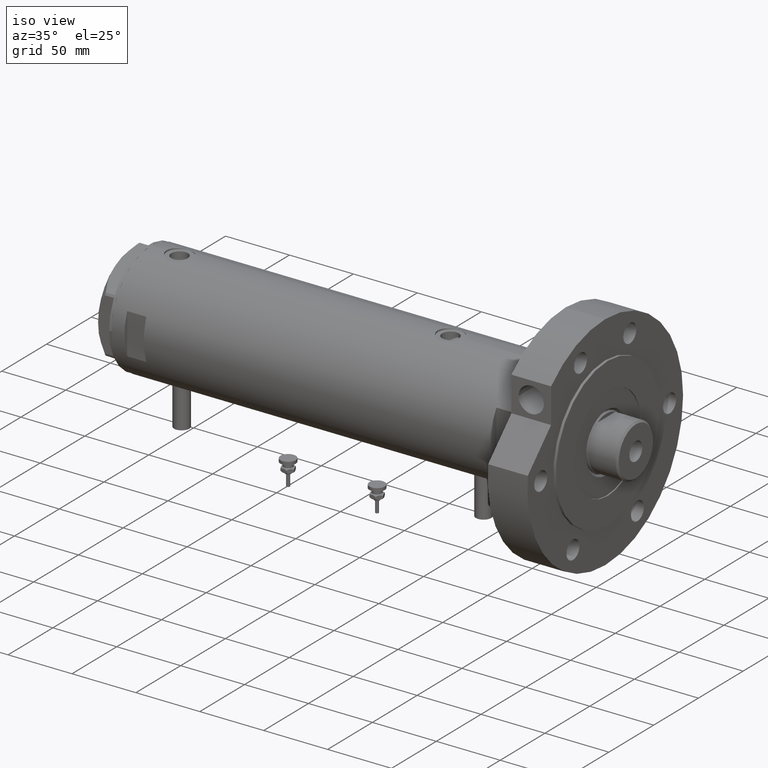
[diagram: clean part render]
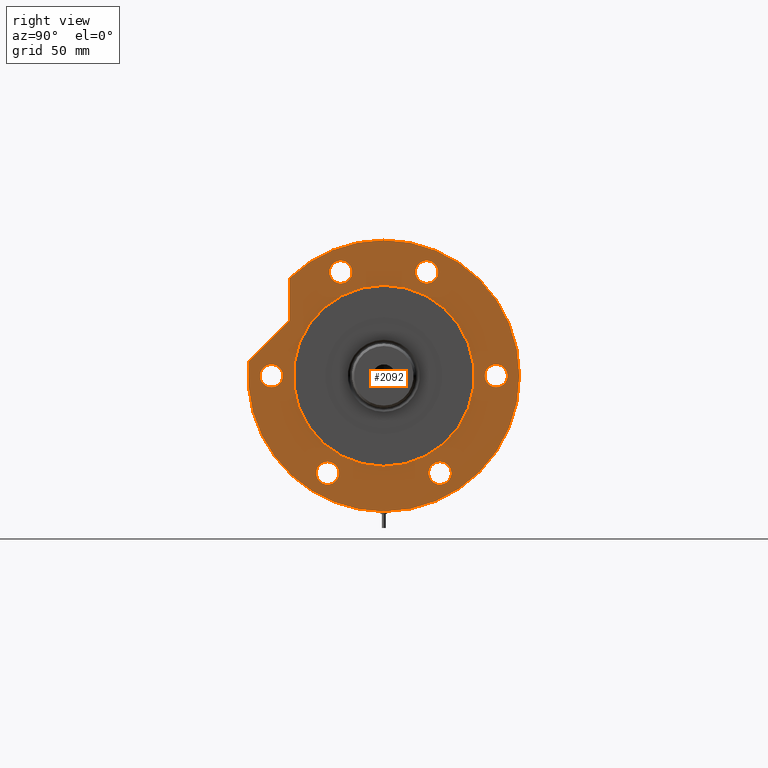
[diagram: tour spotlight — one face highlighted and labeled with its STEP entity id]
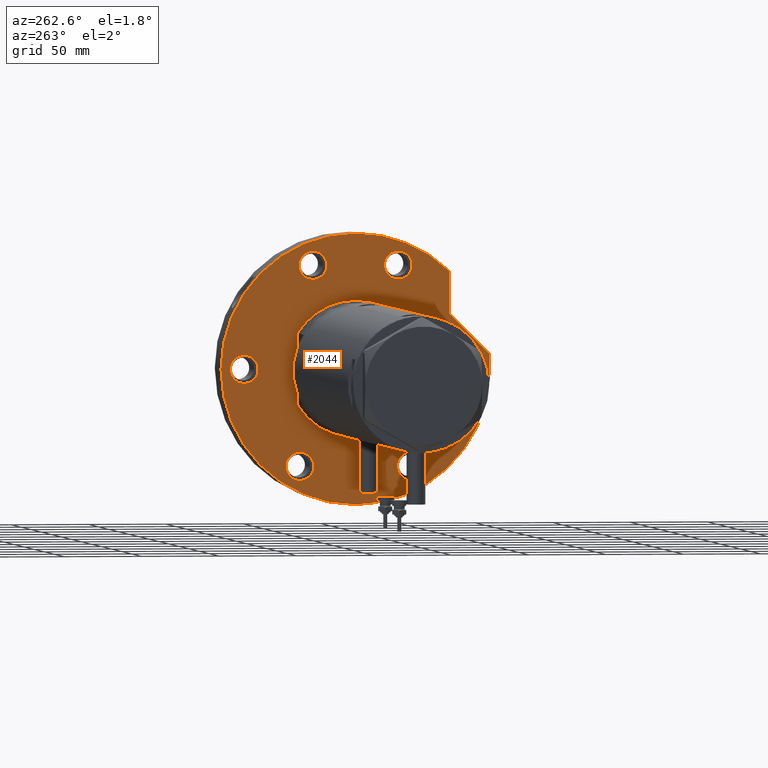
[diagram: tour spotlight — one face highlighted and labeled with its STEP entity id]
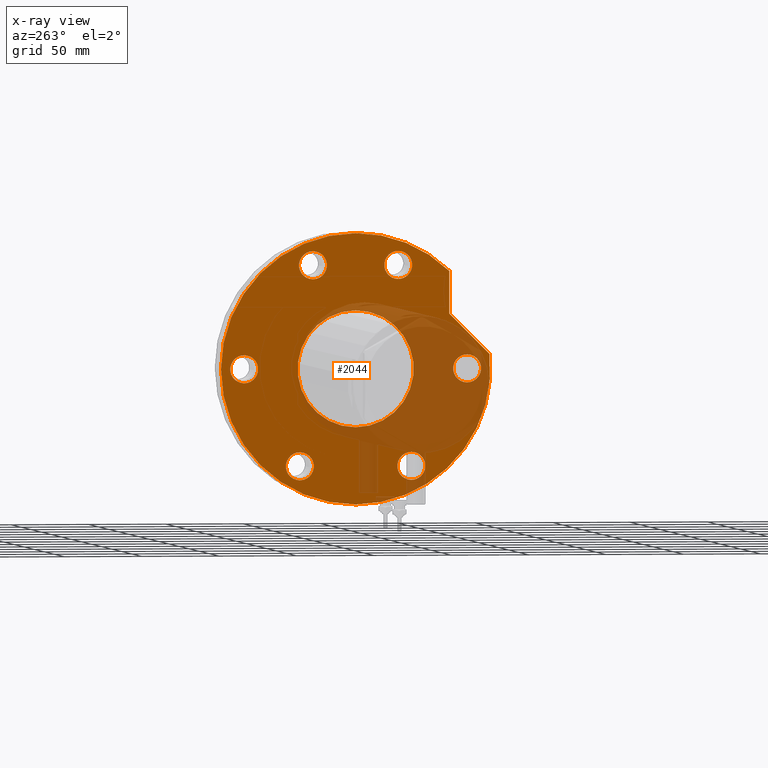
[diagram: x-ray of the same camera — body ghosted, this tour face saturated]
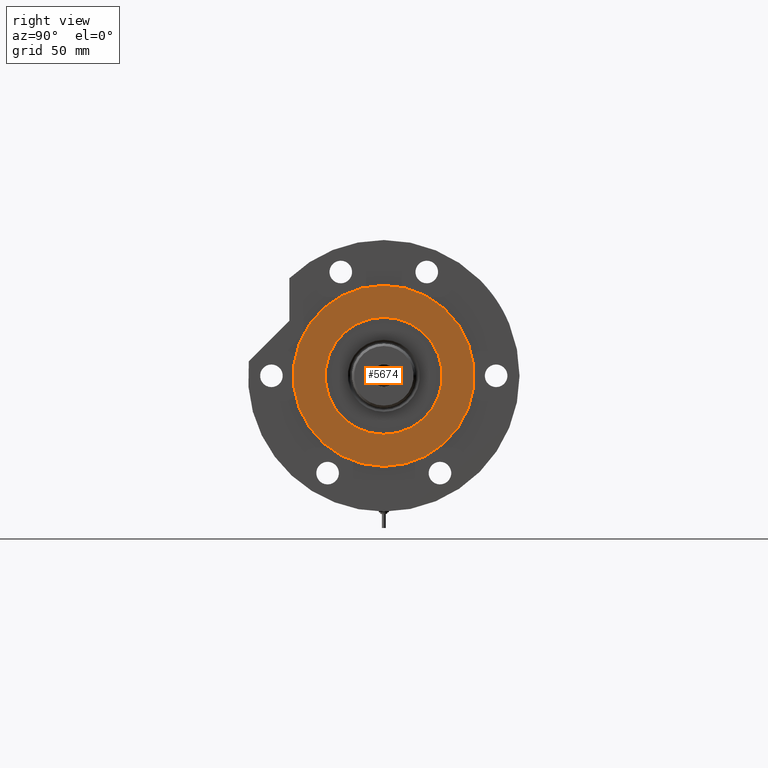
[diagram: tour spotlight — one face highlighted and labeled with its STEP entity id]
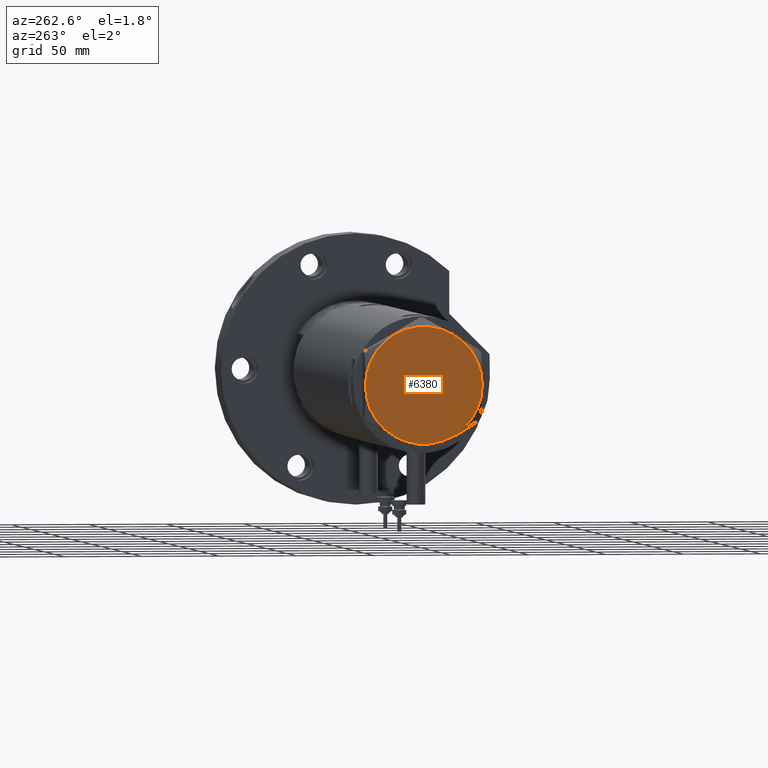
[diagram: tour spotlight — one face highlighted and labeled with its STEP entity id]
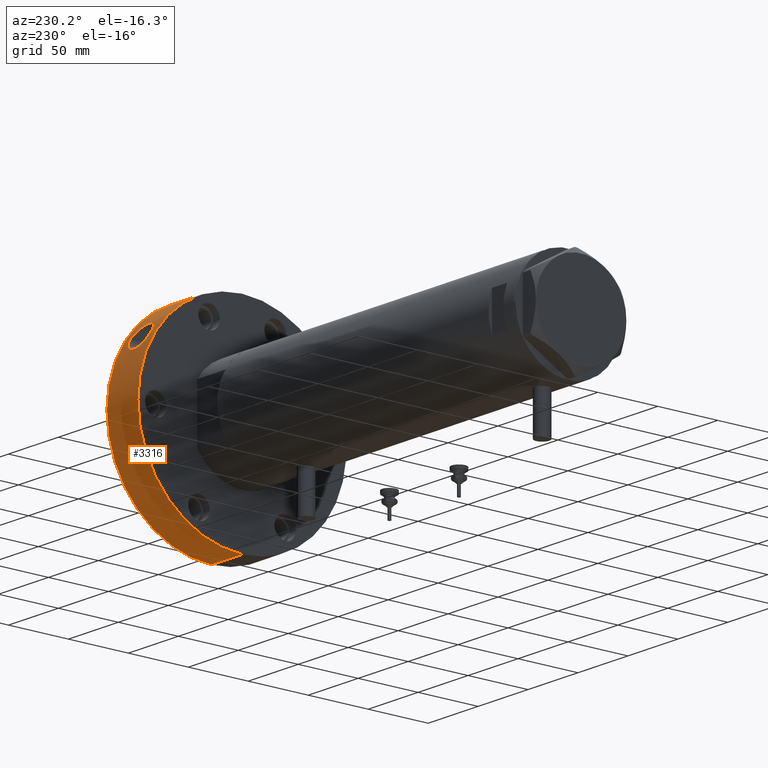
[diagram: tour spotlight — one face highlighted and labeled with its STEP entity id]
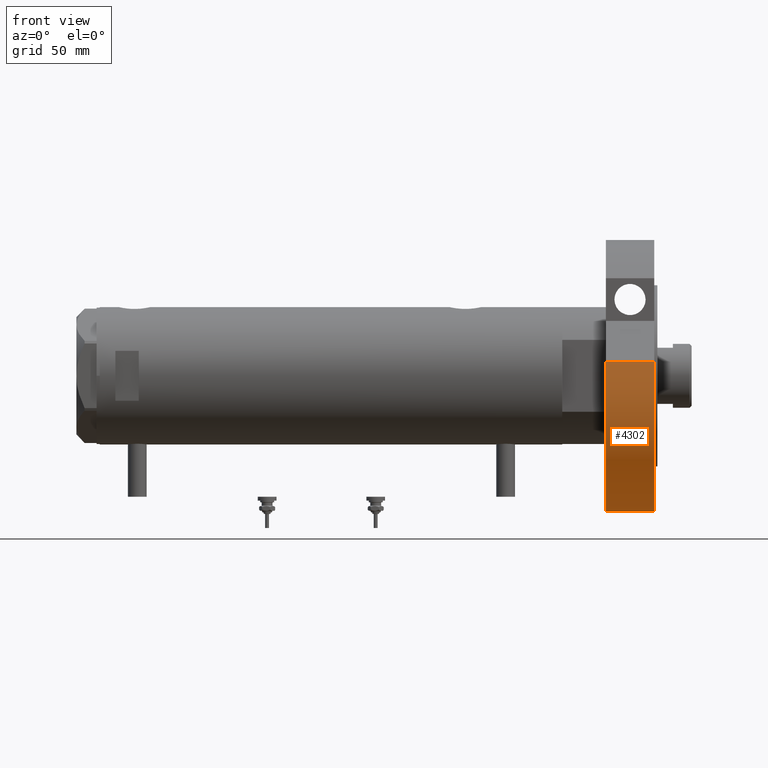
[diagram: tour spotlight — one face highlighted and labeled with its STEP entity id]
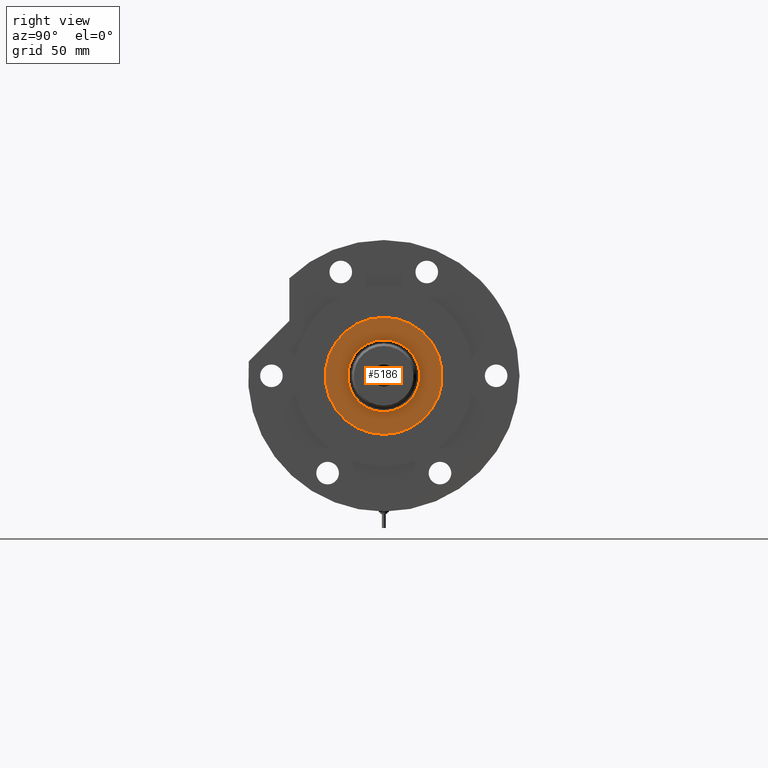
[diagram: tour spotlight — one face highlighted and labeled with its STEP entity id]
A machine part: a face-by-face anatomy tour. The part has 257 B-rep faces; the first image is the clean iso view, then the 7 largest visible faces are spotlighted one at a time (largest first), each with its STEP entity span.

Face 1 — right view, entity #2092. In plain terms, the highlighted planar face has unit normal (1, 0, -0).
Definition (entity closure, byte-faithful):
#26 = VERTEX_POINT ( 'NONE', #7335 ) ;
#46 = VECTOR ( 'NONE', #3589, 1000.000000000000000 ) ;
#69 = DIRECTION ( 'NONE',  ( 1.000000000000000000, 0.000000000000000000, 0.000000000000000000 ) ) ;
#110 = CARTESIAN_POINT ( 'NONE',  ( -7.250000000000001776, 72.00000000000000000, 31.00000000000000000 ) ) ;
#141 = ORIENTED_EDGE ( 'NONE', *, *, #1243, .F. ) ;
#174 = AXIS2_PLACEMENT_3D ( 'NONE', #5795, #4688, #4047 ) ;
#181 = CARTESIAN_POINT ( 'NONE',  ( -87.00000000000000000, 0.000000000000000000, 31.00000000000000000 ) ) ;
#185 = CIRCLE ( 'NONE', #2516, 87.00000000000000000 ) ;
#290 = DIRECTION ( 'NONE',  ( 1.000000000000000000, 0.000000000000000000, 0.000000000000000000 ) ) ;
#298 = DIRECTION ( 'NONE',  ( 1.000000000000000000, 0.000000000000000000, 0.000000000000000000 ) ) ;
#315 = ORIENTED_EDGE ( 'NONE', *, *, #4529, .F. ) ;
#322 = DIRECTION ( 'NONE',  ( 0.000000000000000000, 0.000000000000000000, 1.000000000000000000 ) ) ;
#355 = CARTESIAN_POINT ( 'NONE',  ( 7.250000000000001776, 72.00000000000000000, 31.00000000000000000 ) ) ;
#402 = CARTESIAN_POINT ( 'NONE',  ( 0.000000000000000000, 72.00000000000000000, 31.00000000000000000 ) ) ;
#407 = CARTESIAN_POINT ( 'NONE',  ( 47.85462068910451450, 47.85462068910500477, 31.00000000000000000 ) ) ;
#446 = LINE ( 'NONE', #407, #2775 ) ;
#467 = CARTESIAN_POINT ( 'NONE',  ( 59.26932634081251905, 27.55320713028675073, 31.00000000000000000 ) ) ;
#484 = EDGE_CURVE ( 'NONE', #4503, #537, #2737, .T. ) ;
#506 = CARTESIAN_POINT ( 'NONE',  ( 58.00000000000000000, 7.102951435054648059E-15, 31.00000000000000000 ) ) ;
#537 = VERTEX_POINT ( 'NONE', #1013 ) ;
#564 = LINE ( 'NONE', #1206, #46 ) ;
#590 = DIRECTION ( 'NONE',  ( 0.000000000000000000, 0.000000000000000000, 1.000000000000000000 ) ) ;
#620 = DIRECTION ( 'NONE',  ( 1.000000000000000000, 0.000000000000000000, 0.000000000000000000 ) ) ;
#643 = ORIENTED_EDGE ( 'NONE', *, *, #2786, .F. ) ;
#668 = ORIENTED_EDGE ( 'NONE', *, *, #774, .F. ) ;
#684 = CIRCLE ( 'NONE', #2278, 58.00000000000000000 ) ;
#690 = CIRCLE ( 'NONE', #4491, 7.250000000000006217 ) ;
#759 = DIRECTION ( 'NONE',  ( 1.000000000000000000, 0.000000000000000000, 0.000000000000000000 ) ) ;
#774 = EDGE_CURVE ( 'NONE', #2192, #7083, #564, .T. ) ;
#793 = DIRECTION ( 'NONE',  ( 0.000000000000000000, 0.000000000000000000, 1.000000000000000000 ) ) ;
#832 = CIRCLE ( 'NONE', #2910, 7.250000000000001776 ) ;
#870 = EDGE_CURVE ( 'NONE', #26, #5715, #4207, .T. ) ;
#950 = DIRECTION ( 'NONE',  ( 1.000000000000000000, 0.000000000000000000, 0.000000000000000000 ) ) ;
#973 = PLANE ( 'NONE',  #7143 ) ;
#993 = EDGE_CURVE ( 'NONE', #5849, #2683, #2496, .T. ) ;
#1013 = CARTESIAN_POINT ( 'NONE',  ( 87.00000000000000000, 1.065442715258197209E-14, 31.00000000000000000 ) ) ;
#1014 = CIRCLE ( 'NONE', #7243, 7.249999999999992895 ) ;
#1049 = CIRCLE ( 'NONE', #1433, 7.249999999999992895 ) ;
#1051 = EDGE_CURVE ( 'NONE', #1595, #5081, #1014, .T. ) ;
#1136 = CARTESIAN_POINT ( 'NONE',  ( -55.10382907247942796, -36.00000000000027711, 31.00000000000000000 ) ) ;
#1173 = ORIENTED_EDGE ( 'NONE', *, *, #1754, .T. ) ;
#1206 = CARTESIAN_POINT ( 'NONE',  ( 0.000000000000000000, 60.47687547247904405, 31.00000000000000000 ) ) ;
#1243 = EDGE_CURVE ( 'NONE', #2683, #5849, #4822, .T. ) ;
#1275 = CIRCLE ( 'NONE', #3614, 87.00000000000000000 ) ;
#1298 = EDGE_LOOP ( 'NONE', ( #4145, #141 ) ) ;
#1400 = CARTESIAN_POINT ( 'NONE',  ( -62.35382907247942086, -36.00000000000027711, 31.00000000000000000 ) ) ;
#1405 = VERTEX_POINT ( 'NONE', #3198 ) ;
#1433 = AXIS2_PLACEMENT_3D ( 'NONE', #5603, #322, #4999 ) ;
#1443 = CIRCLE ( 'NONE', #5836, 7.249999999999992895 ) ;
#1480 = FACE_OUTER_BOUND ( 'NONE', #6406, .T. ) ;
#1500 = ORIENTED_EDGE ( 'NONE', *, *, #6710, .F. ) ;
#1514 = FACE_BOUND ( 'NONE', #7002, .T. ) ;
#1520 = AXIS2_PLACEMENT_3D ( 'NONE', #1400, #3206, #290 ) ;
#1595 = VERTEX_POINT ( 'NONE', #2164 ) ;
#1687 = CIRCLE ( 'NONE', #6563, 7.250000000000006217 ) ;
#1754 = EDGE_CURVE ( 'NONE', #1405, #4503, #1275, .T. ) ;
#1780 = DIRECTION ( 'NONE',  ( 1.000000000000000000, 0.000000000000000000, -0.000000000000000000 ) ) ;
#1808 = ORIENTED_EDGE ( 'NONE', *, *, #4853, .F. ) ;
#1888 = CARTESIAN_POINT ( 'NONE',  ( 0.000000000000000000, 0.000000000000000000, 31.00000000000000000 ) ) ;
#1968 = CARTESIAN_POINT ( 'NONE',  ( 0.000000000000000000, 0.000000000000000000, 31.00000000000000000 ) ) ;
#1969 = CARTESIAN_POINT ( 'NONE',  ( -69.60382907247965534, 35.99999999999985079, 31.00000000000000000 ) ) ;
#1998 = CARTESIAN_POINT ( 'NONE',  ( 0.000000000000000000, 0.000000000000000000, 31.00000000000000000 ) ) ;
#2054 = EDGE_CURVE ( 'NONE', #537, #7083, #185, .T. ) ;
#2062 = FACE_BOUND ( 'NONE', #1298, .T. ) ;
#2092 = ADVANCED_FACE ( 'NONE', ( #2062, #2167, #6138, #6218, #6713, #1514, #1480, #3819 ), #973, .T. ) ;
#2131 = DIRECTION ( 'NONE',  ( 0.000000000000000000, 0.000000000000000000, 1.000000000000000000 ) ) ;
#2164 = CARTESIAN_POINT ( 'NONE',  ( 73.76932634081251194, 27.55320713028675073, 31.00000000000000000 ) ) ;
#2167 = FACE_BOUND ( 'NONE', #2533, .T. ) ;
#2192 = VERTEX_POINT ( 'NONE', #7306 ) ;
#2204 = DIRECTION ( 'NONE',  ( 1.000000000000000000, 0.000000000000000000, 0.000000000000000000 ) ) ;
#2238 = DIRECTION ( 'NONE',  ( 1.000000000000000000, 0.000000000000000000, 0.000000000000000000 ) ) ;
#2265 = CARTESIAN_POINT ( 'NONE',  ( -58.00000000000000000, 0.000000000000000000, 31.00000000000000000 ) ) ;
#2278 = AXIS2_PLACEMENT_3D ( 'NONE', #1968, #3648, #7149 ) ;
#2453 = DIRECTION ( 'NONE',  ( 0.000000000000000000, 0.000000000000000000, 1.000000000000000000 ) ) ;
#2496 = CIRCLE ( 'NONE', #7003, 7.250000000000001776 ) ;
#2516 = AXIS2_PLACEMENT_3D ( 'NONE', #5041, #4504, #2204 ) ;
#2533 = EDGE_LOOP ( 'NONE', ( #5407, #3128 ) ) ;
#2614 = VERTEX_POINT ( 'NONE', #6093 ) ;
#2683 = VERTEX_POINT ( 'NONE', #355 ) ;
#2719 = CARTESIAN_POINT ( 'NONE',  ( 59.26932634081251905, -27.55320713028675073, 31.00000000000000000 ) ) ;
#2737 = CIRCLE ( 'NONE', #6640, 87.00000000000000000 ) ;
#2741 = DIRECTION ( 'NONE',  ( 0.000000000000000000, 0.000000000000000000, 1.000000000000000000 ) ) ;
#2775 = VECTOR ( 'NONE', #3976, 999.9999999999998863 ) ;
#2786 = EDGE_CURVE ( 'NONE', #5199, #3832, #684, .T. ) ;
#2858 = DIRECTION ( 'NONE',  ( 1.000000000000000000, 0.000000000000000000, 0.000000000000000000 ) ) ;
#2885 = VERTEX_POINT ( 'NONE', #2719 ) ;
#2910 = AXIS2_PLACEMENT_3D ( 'NONE', #4707, #5740, #5167 ) ;
#3061 = CARTESIAN_POINT ( 'NONE',  ( 0.000000000000000000, -72.00000000000000000, 31.00000000000000000 ) ) ;
#3128 = ORIENTED_EDGE ( 'NONE', *, *, #1051, .F. ) ;
#3198 = CARTESIAN_POINT ( 'NONE',  ( 9.196694222441541555, 86.51254715576759224, 31.00000000000000000 ) ) ;
#3206 = DIRECTION ( 'NONE',  ( 0.000000000000000000, 0.000000000000000000, 1.000000000000000000 ) ) ;
#3278 = CIRCLE ( 'NONE', #4993, 58.00000000000000000 ) ;
#3286 = ORIENTED_EDGE ( 'NONE', *, *, #5823, .F. ) ;
#3288 = ORIENTED_EDGE ( 'NONE', *, *, #5137, .F. ) ;
#3317 = CARTESIAN_POINT ( 'NONE',  ( 0.000000000000000000, 0.000000000000000000, 31.00000000000000000 ) ) ;
#3326 = ORIENTED_EDGE ( 'NONE', *, *, #5867, .F. ) ;
#3336 = VERTEX_POINT ( 'NONE', #3392 ) ;
#3392 = CARTESIAN_POINT ( 'NONE',  ( -55.10382907247964823, 35.99999999999985079, 31.00000000000000000 ) ) ;
#3417 = EDGE_LOOP ( 'NONE', ( #5648, #3326 ) ) ;
#3439 = CARTESIAN_POINT ( 'NONE',  ( -62.35382907247965534, 35.99999999999985079, 31.00000000000000000 ) ) ;
#3490 = ORIENTED_EDGE ( 'NONE', *, *, #6144, .F. ) ;
#3589 = DIRECTION ( 'NONE',  ( 1.000000000000000000, 0.000000000000000000, -0.000000000000000000 ) ) ;
#3599 = DIRECTION ( 'NONE',  ( 1.000000000000000000, 0.000000000000000000, 0.000000000000000000 ) ) ;
#3614 = AXIS2_PLACEMENT_3D ( 'NONE', #1888, #6016, #7154 ) ;
#3635 = ORIENTED_EDGE ( 'NONE', *, *, #5256, .F. ) ;
#3648 = DIRECTION ( 'NONE',  ( 0.000000000000000000, 0.000000000000000000, 1.000000000000000000 ) ) ;
#3751 = AXIS2_PLACEMENT_3D ( 'NONE', #3061, #793, #69 ) ;
#3758 = AXIS2_PLACEMENT_3D ( 'NONE', #6963, #6471, #5178 ) ;
#3819 = FACE_BOUND ( 'NONE', #5333, .T. ) ;
#3832 = VERTEX_POINT ( 'NONE', #2265 ) ;
#3908 = ORIENTED_EDGE ( 'NONE', *, *, #2054, .T. ) ;
#3970 = DIRECTION ( 'NONE',  ( 1.000000000000000000, 0.000000000000000000, 0.000000000000000000 ) ) ;
#3976 = DIRECTION ( 'NONE',  ( 0.7071067811865511255, -0.7071067811865440200, 0.000000000000000000 ) ) ;
#4047 = DIRECTION ( 'NONE',  ( 1.000000000000000000, 0.000000000000000000, 0.000000000000000000 ) ) ;
#4059 = VERTEX_POINT ( 'NONE', #1969 ) ;
#4109 = DIRECTION ( 'NONE',  ( 0.000000000000000000, 0.000000000000000000, 1.000000000000000000 ) ) ;
#4145 = ORIENTED_EDGE ( 'NONE', *, *, #993, .F. ) ;
#4207 = CIRCLE ( 'NONE', #1520, 7.249999999999992895 ) ;
#4491 = AXIS2_PLACEMENT_3D ( 'NONE', #6394, #4109, #620 ) ;
#4503 = VERTEX_POINT ( 'NONE', #181 ) ;
#4504 = DIRECTION ( 'NONE',  ( 0.000000000000000000, 0.000000000000000000, 1.000000000000000000 ) ) ;
#4529 = EDGE_CURVE ( 'NONE', #2614, #4790, #5458, .T. ) ;
#4541 = VERTEX_POINT ( 'NONE', #4706 ) ;
#4619 = DIRECTION ( 'NONE',  ( 0.000000000000000000, 0.000000000000000000, 1.000000000000000000 ) ) ;
#4688 = DIRECTION ( 'NONE',  ( 0.000000000000000000, 0.000000000000000000, 1.000000000000000000 ) ) ;
#4706 = CARTESIAN_POINT ( 'NONE',  ( 73.76932634081251194, -27.55320713028675073, 31.00000000000000000 ) ) ;
#4707 = CARTESIAN_POINT ( 'NONE',  ( 0.000000000000000000, -72.00000000000000000, 31.00000000000000000 ) ) ;
#4790 = VERTEX_POINT ( 'NONE', #5649 ) ;
#4822 = CIRCLE ( 'NONE', #174, 7.250000000000001776 ) ;
#4853 = EDGE_CURVE ( 'NONE', #1405, #2192, #446, .T. ) ;
#4993 = AXIS2_PLACEMENT_3D ( 'NONE', #7141, #6535, #759 ) ;
#4999 = DIRECTION ( 'NONE',  ( 1.000000000000000000, 0.000000000000000000, 0.000000000000000000 ) ) ;
#5034 = EDGE_CURVE ( 'NONE', #2885, #4541, #1049, .T. ) ;
#5041 = CARTESIAN_POINT ( 'NONE',  ( 0.000000000000000000, 0.000000000000000000, 31.00000000000000000 ) ) ;
#5077 = CARTESIAN_POINT ( 'NONE',  ( 66.51932634081252615, 27.55320713028675073, 31.00000000000000000 ) ) ;
#5081 = VERTEX_POINT ( 'NONE', #467 ) ;
#5092 = ORIENTED_EDGE ( 'NONE', *, *, #870, .F. ) ;
#5137 = EDGE_CURVE ( 'NONE', #5715, #26, #6680, .T. ) ;
#5167 = DIRECTION ( 'NONE',  ( 1.000000000000000000, 0.000000000000000000, 0.000000000000000000 ) ) ;
#5178 = DIRECTION ( 'NONE',  ( 1.000000000000000000, 0.000000000000000000, 0.000000000000000000 ) ) ;
#5199 = VERTEX_POINT ( 'NONE', #506 ) ;
#5256 = EDGE_CURVE ( 'NONE', #4059, #3336, #690, .T. ) ;
#5267 = EDGE_LOOP ( 'NONE', ( #5092, #3288 ) ) ;
#5333 = EDGE_LOOP ( 'NONE', ( #3286, #643 ) ) ;
#5407 = ORIENTED_EDGE ( 'NONE', *, *, #7067, .F. ) ;
#5458 = CIRCLE ( 'NONE', #3751, 7.250000000000001776 ) ;
#5544 = ORIENTED_EDGE ( 'NONE', *, *, #484, .T. ) ;
#5603 = CARTESIAN_POINT ( 'NONE',  ( 66.51932634081252615, -27.55320713028675073, 31.00000000000000000 ) ) ;
#5648 = ORIENTED_EDGE ( 'NONE', *, *, #5034, .F. ) ;
#5649 = CARTESIAN_POINT ( 'NONE',  ( 7.250000000000001776, -72.00000000000000000, 31.00000000000000000 ) ) ;
#5715 = VERTEX_POINT ( 'NONE', #1136 ) ;
#5725 = AXIS2_PLACEMENT_3D ( 'NONE', #7500, #4619, #298 ) ;
#5740 = DIRECTION ( 'NONE',  ( 0.000000000000000000, 0.000000000000000000, 1.000000000000000000 ) ) ;
#5767 = DIRECTION ( 'NONE',  ( 0.000000000000000000, 0.000000000000000000, 1.000000000000000000 ) ) ;
#5795 = CARTESIAN_POINT ( 'NONE',  ( 0.000000000000000000, 72.00000000000000000, 31.00000000000000000 ) ) ;
#5823 = EDGE_CURVE ( 'NONE', #3832, #5199, #3278, .T. ) ;
#5836 = AXIS2_PLACEMENT_3D ( 'NONE', #7181, #2453, #3599 ) ;
#5849 = VERTEX_POINT ( 'NONE', #110 ) ;
#5867 = EDGE_CURVE ( 'NONE', #4541, #2885, #1443, .T. ) ;
#6016 = DIRECTION ( 'NONE',  ( 0.000000000000000000, 0.000000000000000000, 1.000000000000000000 ) ) ;
#6093 = CARTESIAN_POINT ( 'NONE',  ( -7.250000000000001776, -72.00000000000000000, 31.00000000000000000 ) ) ;
#6138 = FACE_BOUND ( 'NONE', #3417, .T. ) ;
#6144 = EDGE_CURVE ( 'NONE', #3336, #4059, #1687, .T. ) ;
#6193 = DIRECTION ( 'NONE',  ( 0.000000000000000000, 0.000000000000000000, 1.000000000000000000 ) ) ;
#6218 = FACE_BOUND ( 'NONE', #6985, .T. ) ;
#6394 = CARTESIAN_POINT ( 'NONE',  ( -62.35382907247965534, 35.99999999999985079, 31.00000000000000000 ) ) ;
#6406 = EDGE_LOOP ( 'NONE', ( #668, #1808, #1173, #5544, #3908 ) ) ;
#6471 = DIRECTION ( 'NONE',  ( 0.000000000000000000, 0.000000000000000000, 1.000000000000000000 ) ) ;
#6535 = DIRECTION ( 'NONE',  ( 0.000000000000000000, 0.000000000000000000, 1.000000000000000000 ) ) ;
#6563 = AXIS2_PLACEMENT_3D ( 'NONE', #3439, #5767, #2858 ) ;
#6640 = AXIS2_PLACEMENT_3D ( 'NONE', #1998, #6193, #950 ) ;
#6680 = CIRCLE ( 'NONE', #3758, 7.249999999999992895 ) ;
#6710 = EDGE_CURVE ( 'NONE', #4790, #2614, #832, .T. ) ;
#6713 = FACE_BOUND ( 'NONE', #5267, .T. ) ;
#6939 = CIRCLE ( 'NONE', #5725, 7.249999999999992895 ) ;
#6963 = CARTESIAN_POINT ( 'NONE',  ( -62.35382907247942086, -36.00000000000027711, 31.00000000000000000 ) ) ;
#6985 = EDGE_LOOP ( 'NONE', ( #315, #1500 ) ) ;
#7002 = EDGE_LOOP ( 'NONE', ( #3635, #3490 ) ) ;
#7003 = AXIS2_PLACEMENT_3D ( 'NONE', #402, #2741, #2238 ) ;
#7050 = CARTESIAN_POINT ( 'NONE',  ( 62.54236590573034249, 60.47687547247904405, 31.00000000000000000 ) ) ;
#7067 = EDGE_CURVE ( 'NONE', #5081, #1595, #6939, .T. ) ;
#7083 = VERTEX_POINT ( 'NONE', #7050 ) ;
#7141 = CARTESIAN_POINT ( 'NONE',  ( 0.000000000000000000, 0.000000000000000000, 31.00000000000000000 ) ) ;
#7143 = AXIS2_PLACEMENT_3D ( 'NONE', #3317, #590, #1780 ) ;
#7149 = DIRECTION ( 'NONE',  ( 1.000000000000000000, 0.000000000000000000, 0.000000000000000000 ) ) ;
#7154 = DIRECTION ( 'NONE',  ( 1.000000000000000000, 0.000000000000000000, 0.000000000000000000 ) ) ;
#7181 = CARTESIAN_POINT ( 'NONE',  ( 66.51932634081252615, -27.55320713028675073, 31.00000000000000000 ) ) ;
#7243 = AXIS2_PLACEMENT_3D ( 'NONE', #5077, #2131, #3970 ) ;
#7306 = CARTESIAN_POINT ( 'NONE',  ( 35.23236590573035443, 60.47687547247904405, 31.00000000000000000 ) ) ;
#7335 = CARTESIAN_POINT ( 'NONE',  ( -69.60382907247941375, -36.00000000000027711, 31.00000000000000000 ) ) ;
#7500 = CARTESIAN_POINT ( 'NONE',  ( 66.51932634081252615, 27.55320713028675073, 31.00000000000000000 ) ) ;

Face 2 — auxiliary view, entity #2044. An x-ray twin of the same camera follows (body ghosted, this face saturated) — the face is partly hidden behind the body. In plain terms, the highlighted planar face has unit normal (1, 0, -0).
Definition (entity closure, byte-faithful):
#135 = CARTESIAN_POINT ( 'NONE',  ( -8.999999999999998224, 72.00000000000000000, 0.000000000000000000 ) ) ;
#144 = CARTESIAN_POINT ( 'NONE',  ( 0.000000000000000000, -72.00000000000000000, 0.000000000000000000 ) ) ;
#149 = ORIENTED_EDGE ( 'NONE', *, *, #541, .F. ) ;
#255 = VERTEX_POINT ( 'NONE', #2489 ) ;
#281 = CARTESIAN_POINT ( 'NONE',  ( -53.35382907247965534, 35.99999999999985079, 0.000000000000000000 ) ) ;
#284 = CIRCLE ( 'NONE', #4941, 9.000000000000001776 ) ;
#329 = CARTESIAN_POINT ( 'NONE',  ( 0.000000000000000000, 0.000000000000000000, 0.000000000000000000 ) ) ;
#349 = DIRECTION ( 'NONE',  ( 0.000000000000000000, 0.000000000000000000, 1.000000000000000000 ) ) ;
#436 = FACE_BOUND ( 'NONE', #2603, .T. ) ;
#451 = CARTESIAN_POINT ( 'NONE',  ( 0.000000000000000000, 72.00000000000000000, 0.000000000000000000 ) ) ;
#492 = DIRECTION ( 'NONE',  ( -1.000000000000000000, 0.000000000000000000, 0.000000000000000000 ) ) ;
#497 = DIRECTION ( 'NONE',  ( 0.7071067811865511255, -0.7071067811865440200, -0.000000000000000000 ) ) ;
#528 = EDGE_CURVE ( 'NONE', #7043, #2863, #284, .T. ) ;
#541 = EDGE_CURVE ( 'NONE', #3192, #2839, #1255, .T. ) ;
#554 = AXIS2_PLACEMENT_3D ( 'NONE', #5031, #3956, #6775 ) ;
#615 = VERTEX_POINT ( 'NONE', #1000 ) ;
#644 = DIRECTION ( 'NONE',  ( 0.000000000000000000, 0.000000000000000000, -1.000000000000000000 ) ) ;
#688 = ORIENTED_EDGE ( 'NONE', *, *, #5641, .F. ) ;
#717 = AXIS2_PLACEMENT_3D ( 'NONE', #7068, #4289, #1333 ) ;
#778 = EDGE_CURVE ( 'NONE', #2580, #3459, #4696, .T. ) ;
#843 = DIRECTION ( 'NONE',  ( 0.000000000000000000, 0.000000000000000000, -1.000000000000000000 ) ) ;
#864 = CARTESIAN_POINT ( 'NONE',  ( 37.50000000000000711, 0.000000000000000000, 0.000000000000000000 ) ) ;
#875 = ORIENTED_EDGE ( 'NONE', *, *, #4857, .F. ) ;
#936 = FACE_BOUND ( 'NONE', #6398, .T. ) ;
#985 = DIRECTION ( 'NONE',  ( 0.000000000000000000, 0.000000000000000000, -1.000000000000000000 ) ) ;
#1000 = CARTESIAN_POINT ( 'NONE',  ( 75.51932634081252615, 27.55320713028675073, 0.000000000000000000 ) ) ;
#1060 = LINE ( 'NONE', #3412, #4750 ) ;
#1121 = ORIENTED_EDGE ( 'NONE', *, *, #6613, .T. ) ;
#1177 = DIRECTION ( 'NONE',  ( 0.000000000000000000, 0.000000000000000000, -1.000000000000000000 ) ) ;
#1246 = VERTEX_POINT ( 'NONE', #5950 ) ;
#1255 = CIRCLE ( 'NONE', #6275, 8.999999999999998224 ) ;
#1333 = DIRECTION ( 'NONE',  ( -1.000000000000000000, 0.000000000000000000, 0.000000000000000000 ) ) ;
#1513 = ORIENTED_EDGE ( 'NONE', *, *, #4409, .F. ) ;
#1522 = ORIENTED_EDGE ( 'NONE', *, *, #2096, .F. ) ;
#1538 = CIRCLE ( 'NONE', #554, 9.000000000000001776 ) ;
#1556 = FACE_BOUND ( 'NONE', #6863, .T. ) ;
#1559 = AXIS2_PLACEMENT_3D ( 'NONE', #3413, #2297, #6954 ) ;
#1606 = CARTESIAN_POINT ( 'NONE',  ( 66.51932634081252615, -27.55320713028675073, 0.000000000000000000 ) ) ;
#1700 = DIRECTION ( 'NONE',  ( -1.000000000000000000, 0.000000000000000000, 0.000000000000000000 ) ) ;
#1775 = ORIENTED_EDGE ( 'NONE', *, *, #6789, .T. ) ;
#1835 = ORIENTED_EDGE ( 'NONE', *, *, #2282, .F. ) ;
#1905 = AXIS2_PLACEMENT_3D ( 'NONE', #7457, #4574, #2275 ) ;
#1917 = AXIS2_PLACEMENT_3D ( 'NONE', #3560, #644, #6573 ) ;
#2044 = ADVANCED_FACE ( 'NONE', ( #3351, #7422, #436, #1556, #2708, #6176, #936, #3281 ), #4542, .F. ) ;
#2057 = CIRCLE ( 'NONE', #2416, 8.999999999999998224 ) ;
#2070 = DIRECTION ( 'NONE',  ( 0.000000000000000000, 0.000000000000000000, 1.000000000000000000 ) ) ;
#2096 = EDGE_CURVE ( 'NONE', #2587, #6074, #4836, .T. ) ;
#2098 = DIRECTION ( 'NONE',  ( 1.000000000000000000, 0.000000000000000000, -0.000000000000000000 ) ) ;
#2275 = DIRECTION ( 'NONE',  ( -1.000000000000000000, 0.000000000000000000, 0.000000000000000000 ) ) ;
#2282 = EDGE_CURVE ( 'NONE', #255, #615, #1538, .T. ) ;
#2297 = DIRECTION ( 'NONE',  ( 0.000000000000000000, 0.000000000000000000, -1.000000000000000000 ) ) ;
#2337 = CARTESIAN_POINT ( 'NONE',  ( 0.000000000000000000, 72.00000000000000000, 0.000000000000000000 ) ) ;
#2349 = EDGE_LOOP ( 'NONE', ( #1835, #4115 ) ) ;
#2352 = CARTESIAN_POINT ( 'NONE',  ( 87.00000000000000000, 1.065442715258197209E-14, 0.000000000000000000 ) ) ;
#2382 = LINE ( 'NONE', #4721, #3881 ) ;
#2416 = AXIS2_PLACEMENT_3D ( 'NONE', #144, #4785, #6004 ) ;
#2489 = CARTESIAN_POINT ( 'NONE',  ( 57.51932634081251905, 27.55320713028675073, 0.000000000000000000 ) ) ;
#2502 = VERTEX_POINT ( 'NONE', #7159 ) ;
#2580 = VERTEX_POINT ( 'NONE', #4270 ) ;
#2587 = VERTEX_POINT ( 'NONE', #3121 ) ;
#2603 = EDGE_LOOP ( 'NONE', ( #1513, #5027 ) ) ;
#2604 = CARTESIAN_POINT ( 'NONE',  ( -62.35382907247942086, -36.00000000000027711, 0.000000000000000000 ) ) ;
#2639 = CARTESIAN_POINT ( 'NONE',  ( -53.35382907247941375, -36.00000000000027711, 0.000000000000000000 ) ) ;
#2673 = AXIS2_PLACEMENT_3D ( 'NONE', #2689, #349, #5055 ) ;
#2689 = CARTESIAN_POINT ( 'NONE',  ( 0.000000000000000000, 0.000000000000000000, 0.000000000000000000 ) ) ;
#2707 = EDGE_CURVE ( 'NONE', #7351, #4817, #3138, .T. ) ;
#2708 = FACE_BOUND ( 'NONE', #3038, .T. ) ;
#2754 = DIRECTION ( 'NONE',  ( 0.000000000000000000, 0.000000000000000000, -1.000000000000000000 ) ) ;
#2839 = VERTEX_POINT ( 'NONE', #4146 ) ;
#2850 = CARTESIAN_POINT ( 'NONE',  ( 75.51932634081252615, -27.55320713028675073, 0.000000000000000000 ) ) ;
#2853 = VERTEX_POINT ( 'NONE', #4944 ) ;
#2863 = VERTEX_POINT ( 'NONE', #5515 ) ;
#2985 = AXIS2_PLACEMENT_3D ( 'NONE', #2604, #985, #4084 ) ;
#3015 = EDGE_CURVE ( 'NONE', #615, #255, #7250, .T. ) ;
#3017 = EDGE_CURVE ( 'NONE', #6074, #2587, #6529, .T. ) ;
#3038 = EDGE_LOOP ( 'NONE', ( #1522, #6974 ) ) ;
#3097 = DIRECTION ( 'NONE',  ( 1.000000000000000000, 0.000000000000000000, 0.000000000000000000 ) ) ;
#3121 = CARTESIAN_POINT ( 'NONE',  ( -71.35382907247941375, -36.00000000000027711, 0.000000000000000000 ) ) ;
#3138 = CIRCLE ( 'NONE', #4114, 9.000000000000001776 ) ;
#3184 = VERTEX_POINT ( 'NONE', #864 ) ;
#3185 = DIRECTION ( 'NONE',  ( -1.000000000000000000, 0.000000000000000000, 0.000000000000000000 ) ) ;
#3192 = VERTEX_POINT ( 'NONE', #135 ) ;
#3228 = ORIENTED_EDGE ( 'NONE', *, *, #2707, .F. ) ;
#3281 = FACE_OUTER_BOUND ( 'NONE', #4133, .T. ) ;
#3351 = FACE_BOUND ( 'NONE', #3994, .T. ) ;
#3412 = CARTESIAN_POINT ( 'NONE',  ( 35.23236590573035443, 60.47687547247904405, 0.000000000000000000 ) ) ;
#3413 = CARTESIAN_POINT ( 'NONE',  ( -62.35382907247965534, 35.99999999999985079, 0.000000000000000000 ) ) ;
#3454 = CARTESIAN_POINT ( 'NONE',  ( -62.35382907247965534, 35.99999999999985079, 0.000000000000000000 ) ) ;
#3459 = VERTEX_POINT ( 'NONE', #2352 ) ;
#3560 = CARTESIAN_POINT ( 'NONE',  ( 66.51932634081252615, -27.55320713028675073, 0.000000000000000000 ) ) ;
#3625 = CIRCLE ( 'NONE', #4601, 87.00000000000000000 ) ;
#3654 = AXIS2_PLACEMENT_3D ( 'NONE', #2337, #1177, #6353 ) ;
#3739 = VERTEX_POINT ( 'NONE', #6429 ) ;
#3881 = VECTOR ( 'NONE', #6087, 1000.000000000000000 ) ;
#3937 = ORIENTED_EDGE ( 'NONE', *, *, #6892, .F. ) ;
#3942 = DIRECTION ( 'NONE',  ( -1.000000000000000000, 0.000000000000000000, 0.000000000000000000 ) ) ;
#3956 = DIRECTION ( 'NONE',  ( 0.000000000000000000, 0.000000000000000000, -1.000000000000000000 ) ) ;
#3994 = EDGE_LOOP ( 'NONE', ( #149, #5290 ) ) ;
#4084 = DIRECTION ( 'NONE',  ( -1.000000000000000000, 0.000000000000000000, 0.000000000000000000 ) ) ;
#4114 = AXIS2_PLACEMENT_3D ( 'NONE', #3454, #5859, #1700 ) ;
#4115 = ORIENTED_EDGE ( 'NONE', *, *, #3015, .F. ) ;
#4119 = CIRCLE ( 'NONE', #5090, 37.50000000000000711 ) ;
#4133 = EDGE_LOOP ( 'NONE', ( #1775, #4992, #4682, #5529, #875 ) ) ;
#4144 = CIRCLE ( 'NONE', #3654, 8.999999999999998224 ) ;
#4146 = CARTESIAN_POINT ( 'NONE',  ( 8.999999999999998224, 72.00000000000000000, 0.000000000000000000 ) ) ;
#4174 = DIRECTION ( 'NONE',  ( 0.000000000000000000, 0.000000000000000000, 1.000000000000000000 ) ) ;
#4261 = CIRCLE ( 'NONE', #2673, 37.50000000000000711 ) ;
#4270 = CARTESIAN_POINT ( 'NONE',  ( -87.00000000000000000, 0.000000000000000000, 0.000000000000000000 ) ) ;
#4289 = DIRECTION ( 'NONE',  ( 0.000000000000000000, 0.000000000000000000, -1.000000000000000000 ) ) ;
#4383 = EDGE_CURVE ( 'NONE', #3459, #2853, #3625, .T. ) ;
#4404 = DIRECTION ( 'NONE',  ( 1.000000000000000000, 0.000000000000000000, 0.000000000000000000 ) ) ;
#4409 = EDGE_CURVE ( 'NONE', #2863, #7043, #5940, .T. ) ;
#4513 = CARTESIAN_POINT ( 'NONE',  ( 0.000000000000000000, 0.000000000000000000, 0.000000000000000000 ) ) ;
#4542 = PLANE ( 'NONE',  #7370 ) ;
#4574 = DIRECTION ( 'NONE',  ( 0.000000000000000000, 0.000000000000000000, -1.000000000000000000 ) ) ;
#4601 = AXIS2_PLACEMENT_3D ( 'NONE', #4513, #4174, #3097 ) ;
#4614 = CIRCLE ( 'NONE', #1559, 9.000000000000001776 ) ;
#4660 = CARTESIAN_POINT ( 'NONE',  ( 0.000000000000000000, 0.000000000000000000, 0.000000000000000000 ) ) ;
#4682 = ORIENTED_EDGE ( 'NONE', *, *, #4383, .F. ) ;
#4696 = CIRCLE ( 'NONE', #7360, 87.00000000000000000 ) ;
#4712 = EDGE_CURVE ( 'NONE', #3184, #5558, #4119, .T. ) ;
#4721 = CARTESIAN_POINT ( 'NONE',  ( 35.23236590573035443, 60.47687547247904405, 0.000000000000000000 ) ) ;
#4734 = CIRCLE ( 'NONE', #7282, 87.00000000000000000 ) ;
#4750 = VECTOR ( 'NONE', #497, 999.9999999999998863 ) ;
#4785 = DIRECTION ( 'NONE',  ( 0.000000000000000000, 0.000000000000000000, -1.000000000000000000 ) ) ;
#4817 = VERTEX_POINT ( 'NONE', #7547 ) ;
#4836 = CIRCLE ( 'NONE', #1905, 9.000000000000001776 ) ;
#4857 = EDGE_CURVE ( 'NONE', #6592, #2580, #4734, .T. ) ;
#4941 = AXIS2_PLACEMENT_3D ( 'NONE', #1606, #6839, #3942 ) ;
#4944 = CARTESIAN_POINT ( 'NONE',  ( 62.54236590573034249, 60.47687547247904405, 0.000000000000000000 ) ) ;
#4992 = ORIENTED_EDGE ( 'NONE', *, *, #5263, .T. ) ;
#5027 = ORIENTED_EDGE ( 'NONE', *, *, #528, .F. ) ;
#5031 = CARTESIAN_POINT ( 'NONE',  ( 66.51932634081252615, 27.55320713028675073, 0.000000000000000000 ) ) ;
#5055 = DIRECTION ( 'NONE',  ( 1.000000000000000000, 0.000000000000000000, 0.000000000000000000 ) ) ;
#5090 = AXIS2_PLACEMENT_3D ( 'NONE', #7286, #2070, #4404 ) ;
#5164 = EDGE_LOOP ( 'NONE', ( #688, #3228 ) ) ;
#5193 = DIRECTION ( 'NONE',  ( 1.000000000000000000, 0.000000000000000000, 0.000000000000000000 ) ) ;
#5263 = EDGE_CURVE ( 'NONE', #3739, #2853, #2382, .T. ) ;
#5290 = ORIENTED_EDGE ( 'NONE', *, *, #6801, .F. ) ;
#5515 = CARTESIAN_POINT ( 'NONE',  ( 57.51932634081251905, -27.55320713028675073, 0.000000000000000000 ) ) ;
#5529 = ORIENTED_EDGE ( 'NONE', *, *, #778, .F. ) ;
#5558 = VERTEX_POINT ( 'NONE', #7365 ) ;
#5641 = EDGE_CURVE ( 'NONE', #4817, #7351, #4614, .T. ) ;
#5776 = EDGE_CURVE ( 'NONE', #2502, #1246, #2057, .T. ) ;
#5859 = DIRECTION ( 'NONE',  ( 0.000000000000000000, 0.000000000000000000, -1.000000000000000000 ) ) ;
#5940 = CIRCLE ( 'NONE', #1917, 9.000000000000001776 ) ;
#5950 = CARTESIAN_POINT ( 'NONE',  ( 8.999999999999998224, -72.00000000000000000, 0.000000000000000000 ) ) ;
#5957 = DIRECTION ( 'NONE',  ( 0.000000000000000000, 0.000000000000000000, 1.000000000000000000 ) ) ;
#6004 = DIRECTION ( 'NONE',  ( -1.000000000000000000, 0.000000000000000000, 0.000000000000000000 ) ) ;
#6074 = VERTEX_POINT ( 'NONE', #2639 ) ;
#6083 = CARTESIAN_POINT ( 'NONE',  ( 66.51932634081252615, 27.55320713028675073, 0.000000000000000000 ) ) ;
#6087 = DIRECTION ( 'NONE',  ( 1.000000000000000000, 0.000000000000000000, 0.000000000000000000 ) ) ;
#6176 = FACE_BOUND ( 'NONE', #5164, .T. ) ;
#6217 = ORIENTED_EDGE ( 'NONE', *, *, #4712, .T. ) ;
#6275 = AXIS2_PLACEMENT_3D ( 'NONE', #451, #2754, #492 ) ;
#6304 = DIRECTION ( 'NONE',  ( 0.000000000000000000, 0.000000000000000000, 1.000000000000000000 ) ) ;
#6349 = ORIENTED_EDGE ( 'NONE', *, *, #5776, .F. ) ;
#6353 = DIRECTION ( 'NONE',  ( -1.000000000000000000, 0.000000000000000000, 0.000000000000000000 ) ) ;
#6398 = EDGE_LOOP ( 'NONE', ( #6217, #1121 ) ) ;
#6408 = AXIS2_PLACEMENT_3D ( 'NONE', #6083, #843, #3185 ) ;
#6429 = CARTESIAN_POINT ( 'NONE',  ( 35.23236590573035443, 60.47687547247904405, 0.000000000000000000 ) ) ;
#6529 = CIRCLE ( 'NONE', #2985, 9.000000000000001776 ) ;
#6573 = DIRECTION ( 'NONE',  ( -1.000000000000000000, 0.000000000000000000, 0.000000000000000000 ) ) ;
#6592 = VERTEX_POINT ( 'NONE', #6730 ) ;
#6613 = EDGE_CURVE ( 'NONE', #5558, #3184, #4261, .T. ) ;
#6730 = CARTESIAN_POINT ( 'NONE',  ( 9.196694222441541555, 86.51254715576759224, 0.000000000000000000 ) ) ;
#6775 = DIRECTION ( 'NONE',  ( -1.000000000000000000, 0.000000000000000000, 0.000000000000000000 ) ) ;
#6789 = EDGE_CURVE ( 'NONE', #6592, #3739, #1060, .T. ) ;
#6801 = EDGE_CURVE ( 'NONE', #2839, #3192, #4144, .T. ) ;
#6839 = DIRECTION ( 'NONE',  ( 0.000000000000000000, 0.000000000000000000, -1.000000000000000000 ) ) ;
#6863 = EDGE_LOOP ( 'NONE', ( #6349, #3937 ) ) ;
#6892 = EDGE_CURVE ( 'NONE', #1246, #2502, #7418, .T. ) ;
#6954 = DIRECTION ( 'NONE',  ( -1.000000000000000000, 0.000000000000000000, 0.000000000000000000 ) ) ;
#6974 = ORIENTED_EDGE ( 'NONE', *, *, #3017, .F. ) ;
#6980 = DIRECTION ( 'NONE',  ( 1.000000000000000000, 0.000000000000000000, 0.000000000000000000 ) ) ;
#7043 = VERTEX_POINT ( 'NONE', #2850 ) ;
#7068 = CARTESIAN_POINT ( 'NONE',  ( 0.000000000000000000, -72.00000000000000000, 0.000000000000000000 ) ) ;
#7159 = CARTESIAN_POINT ( 'NONE',  ( -8.999999999999998224, -72.00000000000000000, 0.000000000000000000 ) ) ;
#7250 = CIRCLE ( 'NONE', #6408, 9.000000000000001776 ) ;
#7282 = AXIS2_PLACEMENT_3D ( 'NONE', #4660, #6304, #5193 ) ;
#7286 = CARTESIAN_POINT ( 'NONE',  ( 0.000000000000000000, 0.000000000000000000, 0.000000000000000000 ) ) ;
#7316 = DIRECTION ( 'NONE',  ( 0.000000000000000000, 0.000000000000000000, 1.000000000000000000 ) ) ;
#7351 = VERTEX_POINT ( 'NONE', #281 ) ;
#7360 = AXIS2_PLACEMENT_3D ( 'NONE', #7548, #5957, #6980 ) ;
#7365 = CARTESIAN_POINT ( 'NONE',  ( -37.50000000000000711, 4.592425496802575156E-15, 0.000000000000000000 ) ) ;
#7370 = AXIS2_PLACEMENT_3D ( 'NONE', #329, #7316, #2098 ) ;
#7418 = CIRCLE ( 'NONE', #717, 8.999999999999998224 ) ;
#7422 = FACE_BOUND ( 'NONE', #2349, .T. ) ;
#7457 = CARTESIAN_POINT ( 'NONE',  ( -62.35382907247942086, -36.00000000000027711, 0.000000000000000000 ) ) ;
#7547 = CARTESIAN_POINT ( 'NONE',  ( -71.35382907247965534, 35.99999999999985079, 0.000000000000000000 ) ) ;
#7548 = CARTESIAN_POINT ( 'NONE',  ( 0.000000000000000000, 0.000000000000000000, 0.000000000000000000 ) ) ;

Face 3 — right view, entity #5674. In plain terms, the highlighted planar face has unit normal (1, 0, -0).
Definition (entity closure, byte-faithful):
#642 = ORIENTED_EDGE ( 'NONE', *, *, #5230, .F. ) ;
#858 = DIRECTION ( 'NONE',  ( 0.000000000000000000, 0.000000000000000000, 1.000000000000000000 ) ) ;
#1240 = CARTESIAN_POINT ( 'NONE',  ( 58.00000000000000000, 7.102951435054648059E-15, 33.00000000000000000 ) ) ;
#1366 = DIRECTION ( 'NONE',  ( 1.000000000000000000, 0.000000000000000000, 0.000000000000000000 ) ) ;
#1369 = EDGE_CURVE ( 'NONE', #4974, #6947, #3601, .T. ) ;
#1545 = ORIENTED_EDGE ( 'NONE', *, *, #4512, .T. ) ;
#1645 = ORIENTED_EDGE ( 'NONE', *, *, #1369, .T. ) ;
#1730 = FACE_OUTER_BOUND ( 'NONE', #7294, .T. ) ;
#1798 = CIRCLE ( 'NONE', #6553, 37.50000000000000711 ) ;
#2190 = EDGE_CURVE ( 'NONE', #5692, #3796, #3744, .T. ) ;
#2817 = CARTESIAN_POINT ( 'NONE',  ( -58.00000000000000000, 0.000000000000000000, 33.00000000000000000 ) ) ;
#2880 = CARTESIAN_POINT ( 'NONE',  ( 0.000000000000000000, 0.000000000000000000, 33.00000000000000000 ) ) ;
#3045 = CARTESIAN_POINT ( 'NONE',  ( 0.000000000000000000, 0.000000000000000000, 33.00000000000000000 ) ) ;
#3125 = DIRECTION ( 'NONE',  ( 1.000000000000000000, 0.000000000000000000, 0.000000000000000000 ) ) ;
#3536 = DIRECTION ( 'NONE',  ( 1.000000000000000000, 0.000000000000000000, 0.000000000000000000 ) ) ;
#3601 = CIRCLE ( 'NONE', #7366, 58.00000000000000000 ) ;
#3744 = CIRCLE ( 'NONE', #6173, 37.50000000000000711 ) ;
#3796 = VERTEX_POINT ( 'NONE', #5749 ) ;
#3810 = DIRECTION ( 'NONE',  ( 1.000000000000000000, 0.000000000000000000, 0.000000000000000000 ) ) ;
#3845 = DIRECTION ( 'NONE',  ( 0.000000000000000000, 0.000000000000000000, 1.000000000000000000 ) ) ;
#4288 = DIRECTION ( 'NONE',  ( 0.000000000000000000, 0.000000000000000000, 1.000000000000000000 ) ) ;
#4512 = EDGE_CURVE ( 'NONE', #6947, #4974, #6675, .T. ) ;
#4558 = DIRECTION ( 'NONE',  ( 1.000000000000000000, 0.000000000000000000, -0.000000000000000000 ) ) ;
#4964 = EDGE_LOOP ( 'NONE', ( #642, #5918 ) ) ;
#4974 = VERTEX_POINT ( 'NONE', #1240 ) ;
#5220 = AXIS2_PLACEMENT_3D ( 'NONE', #7516, #6421, #4558 ) ;
#5230 = EDGE_CURVE ( 'NONE', #3796, #5692, #1798, .T. ) ;
#5313 = CARTESIAN_POINT ( 'NONE',  ( 0.000000000000000000, 0.000000000000000000, 33.00000000000000000 ) ) ;
#5674 = ADVANCED_FACE ( 'NONE', ( #7030, #1730 ), #5854, .T. ) ;
#5692 = VERTEX_POINT ( 'NONE', #7476 ) ;
#5749 = CARTESIAN_POINT ( 'NONE',  ( 37.50000000000000711, 0.000000000000000000, 33.00000000000000000 ) ) ;
#5854 = PLANE ( 'NONE',  #5220 ) ;
#5918 = ORIENTED_EDGE ( 'NONE', *, *, #2190, .F. ) ;
#6173 = AXIS2_PLACEMENT_3D ( 'NONE', #7338, #3845, #3810 ) ;
#6421 = DIRECTION ( 'NONE',  ( 0.000000000000000000, 0.000000000000000000, 1.000000000000000000 ) ) ;
#6553 = AXIS2_PLACEMENT_3D ( 'NONE', #2880, #6998, #3536 ) ;
#6675 = CIRCLE ( 'NONE', #6790, 58.00000000000000000 ) ;
#6790 = AXIS2_PLACEMENT_3D ( 'NONE', #5313, #4288, #1366 ) ;
#6947 = VERTEX_POINT ( 'NONE', #2817 ) ;
#6998 = DIRECTION ( 'NONE',  ( 0.000000000000000000, 0.000000000000000000, 1.000000000000000000 ) ) ;
#7030 = FACE_BOUND ( 'NONE', #4964, .T. ) ;
#7294 = EDGE_LOOP ( 'NONE', ( #1545, #1645 ) ) ;
#7338 = CARTESIAN_POINT ( 'NONE',  ( 0.000000000000000000, 0.000000000000000000, 33.00000000000000000 ) ) ;
#7366 = AXIS2_PLACEMENT_3D ( 'NONE', #3045, #858, #3125 ) ;
#7476 = CARTESIAN_POINT ( 'NONE',  ( -37.50000000000000711, 4.592425496802575156E-15, 33.00000000000000000 ) ) ;
#7516 = CARTESIAN_POINT ( 'NONE',  ( 0.000000000000000000, 0.000000000000000000, 33.00000000000000000 ) ) ;

Face 4 — auxiliary view, entity #6380. In plain terms, the highlighted planar face has unit normal (-1, -0, 0).
Definition (entity closure, byte-faithful):
#132 = DIRECTION ( 'NONE',  ( 0.000000000000000000, 0.000000000000000000, 1.000000000000000000 ) ) ;
#369 = DIRECTION ( 'NONE',  ( 1.000000000000000000, 0.000000000000000000, 0.000000000000000000 ) ) ;
#422 = AXIS2_PLACEMENT_3D ( 'NONE', #7424, #5042, #369 ) ;
#487 = CARTESIAN_POINT ( 'NONE',  ( 18.87500000000000000, 32.69245899286255508, 13.00000000000000000 ) ) ;
#589 = DIRECTION ( 'NONE',  ( 1.000000000000000000, 0.000000000000000000, -0.000000000000000000 ) ) ;
#653 = DIRECTION ( 'NONE',  ( 0.000000000000000000, 0.000000000000000000, 1.000000000000000000 ) ) ;
#731 = ORIENTED_EDGE ( 'NONE', *, *, #5271, .T. ) ;
#787 = CARTESIAN_POINT ( 'NONE',  ( 0.000000000000000000, 0.000000000000000000, 13.00000000000000000 ) ) ;
#801 = CIRCLE ( 'NONE', #4232, 37.75000000000000000 ) ;
#813 = VERTEX_POINT ( 'NONE', #3631 ) ;
#952 = EDGE_CURVE ( 'NONE', #5448, #2028, #6282, .T. ) ;
#1154 = CARTESIAN_POINT ( 'NONE',  ( 0.000000000000000000, 0.000000000000000000, 13.00000000000000000 ) ) ;
#1266 = VERTEX_POINT ( 'NONE', #4162 ) ;
#1391 = EDGE_CURVE ( 'NONE', #4816, #5448, #7486, .T. ) ;
#1428 = ORIENTED_EDGE ( 'NONE', *, *, #3164, .T. ) ;
#1649 = CIRCLE ( 'NONE', #4469, 37.75000000000000000 ) ;
#2028 = VERTEX_POINT ( 'NONE', #5073 ) ;
#2051 = CARTESIAN_POINT ( 'NONE',  ( -18.87499999999999645, -32.69245899286255508, 13.00000000000000000 ) ) ;
#2215 = VERTEX_POINT ( 'NONE', #2051 ) ;
#2274 = PLANE ( 'NONE',  #5968 ) ;
#2441 = DIRECTION ( 'NONE',  ( 1.000000000000000000, 0.000000000000000000, 0.000000000000000000 ) ) ;
#2460 = CARTESIAN_POINT ( 'NONE',  ( 0.000000000000000000, 0.000000000000000000, 13.00000000000000000 ) ) ;
#2551 = DIRECTION ( 'NONE',  ( 1.000000000000000000, 0.000000000000000000, 0.000000000000000000 ) ) ;
#2776 = ORIENTED_EDGE ( 'NONE', *, *, #3209, .T. ) ;
#2980 = AXIS2_PLACEMENT_3D ( 'NONE', #787, #6030, #3135 ) ;
#3009 = DIRECTION ( 'NONE',  ( 0.000000000000000000, 0.000000000000000000, 1.000000000000000000 ) ) ;
#3135 = DIRECTION ( 'NONE',  ( 1.000000000000000000, 0.000000000000000000, 0.000000000000000000 ) ) ;
#3164 = EDGE_CURVE ( 'NONE', #2028, #2215, #1649, .T. ) ;
#3209 = EDGE_CURVE ( 'NONE', #2215, #813, #3736, .T. ) ;
#3268 = CIRCLE ( 'NONE', #4123, 37.75000000000000000 ) ;
#3445 = EDGE_LOOP ( 'NONE', ( #6538, #731, #3806, #3460, #1428, #2776 ) ) ;
#3460 = ORIENTED_EDGE ( 'NONE', *, *, #952, .T. ) ;
#3607 = DIRECTION ( 'NONE',  ( 1.000000000000000000, 0.000000000000000000, 0.000000000000000000 ) ) ;
#3631 = CARTESIAN_POINT ( 'NONE',  ( 18.87499999999998579, -32.69245899286256218, 13.00000000000000000 ) ) ;
#3698 = CARTESIAN_POINT ( 'NONE',  ( 0.000000000000000000, 0.000000000000000000, 13.00000000000000000 ) ) ;
#3736 = CIRCLE ( 'NONE', #422, 37.75000000000000000 ) ;
#3806 = ORIENTED_EDGE ( 'NONE', *, *, #1391, .T. ) ;
#3954 = EDGE_CURVE ( 'NONE', #813, #1266, #801, .T. ) ;
#4123 = AXIS2_PLACEMENT_3D ( 'NONE', #5480, #4334, #5404 ) ;
#4162 = CARTESIAN_POINT ( 'NONE',  ( 37.75000000000000711, 1.802777518484591547E-14, 13.00000000000000000 ) ) ;
#4212 = AXIS2_PLACEMENT_3D ( 'NONE', #3698, #132, #2551 ) ;
#4232 = AXIS2_PLACEMENT_3D ( 'NONE', #2460, #653, #3607 ) ;
#4334 = DIRECTION ( 'NONE',  ( 0.000000000000000000, 0.000000000000000000, 1.000000000000000000 ) ) ;
#4469 = AXIS2_PLACEMENT_3D ( 'NONE', #5300, #3009, #2441 ) ;
#4573 = FACE_OUTER_BOUND ( 'NONE', #3445, .T. ) ;
#4616 = DIRECTION ( 'NONE',  ( 0.000000000000000000, 0.000000000000000000, 1.000000000000000000 ) ) ;
#4816 = VERTEX_POINT ( 'NONE', #487 ) ;
#4947 = CARTESIAN_POINT ( 'NONE',  ( -18.87499999999999645, 32.69245899286256218, 13.00000000000000000 ) ) ;
#5042 = DIRECTION ( 'NONE',  ( 0.000000000000000000, 0.000000000000000000, 1.000000000000000000 ) ) ;
#5073 = CARTESIAN_POINT ( 'NONE',  ( -37.75000000000000000, -1.201851678989727067E-14, 13.00000000000000000 ) ) ;
#5271 = EDGE_CURVE ( 'NONE', #1266, #4816, #3268, .T. ) ;
#5300 = CARTESIAN_POINT ( 'NONE',  ( 0.000000000000000000, 0.000000000000000000, 13.00000000000000000 ) ) ;
#5404 = DIRECTION ( 'NONE',  ( 1.000000000000000000, 0.000000000000000000, 0.000000000000000000 ) ) ;
#5448 = VERTEX_POINT ( 'NONE', #4947 ) ;
#5480 = CARTESIAN_POINT ( 'NONE',  ( 0.000000000000000000, 0.000000000000000000, 13.00000000000000000 ) ) ;
#5968 = AXIS2_PLACEMENT_3D ( 'NONE', #1154, #4616, #589 ) ;
#6030 = DIRECTION ( 'NONE',  ( 0.000000000000000000, 0.000000000000000000, 1.000000000000000000 ) ) ;
#6282 = CIRCLE ( 'NONE', #2980, 37.75000000000000000 ) ;
#6380 = ADVANCED_FACE ( 'NONE', ( #4573 ), #2274, .T. ) ;
#6538 = ORIENTED_EDGE ( 'NONE', *, *, #3954, .T. ) ;
#7424 = CARTESIAN_POINT ( 'NONE',  ( 0.000000000000000000, 0.000000000000000000, 13.00000000000000000 ) ) ;
#7486 = CIRCLE ( 'NONE', #4212, 37.75000000000000000 ) ;

Face 5 — auxiliary view, entity #3316. In plain terms, the highlighted cylindrical surface (partial cylindrical patch) has radius 87 mm, axis along (-1, -0, 0).
Definition (entity closure, byte-faithful):
#3 = CARTESIAN_POINT ( 'NONE',  ( 57.29346255452374237, -65.47147009174786092, 10.07289143578799084 ) ) ;
#13 = CARTESIAN_POINT ( 'NONE',  ( 43.40526761195447136, -75.39947618567215670, 23.86943821453257542 ) ) ;
#47 = CARTESIAN_POINT ( 'NONE',  ( 48.59580874140664974, -72.16350605418516295, 5.499999999999997335 ) ) ;
#60 = LINE ( 'NONE', #4088, #7478 ) ;
#181 = CARTESIAN_POINT ( 'NONE',  ( -87.00000000000000000, 0.000000000000000000, 31.00000000000000000 ) ) ;
#330 = CARTESIAN_POINT ( 'NONE',  ( 0.000000000000000000, 0.000000000000000000, 31.00000000000000000 ) ) ;
#438 = CYLINDRICAL_SURFACE ( 'NONE', #6047, 87.00000000000000000 ) ;
#464 = CARTESIAN_POINT ( 'NONE',  ( 58.08745100091303470, -64.76795604485690205, 19.43469343625208623 ) ) ;
#484 = EDGE_CURVE ( 'NONE', #4503, #537, #2737, .T. ) ;
#512 = CARTESIAN_POINT ( 'NONE',  ( 46.53057644546234428, -73.51458372116090345, 25.23662976042984241 ) ) ;
#537 = VERTEX_POINT ( 'NONE', #1013 ) ;
#538 = CARTESIAN_POINT ( 'NONE',  ( 58.72510912244748482, -64.19013367575983864, 13.66908223378500686 ) ) ;
#550 = CARTESIAN_POINT ( 'NONE',  ( 46.52813420994646521, -73.51616245379780423, 5.763780444131694658 ) ) ;
#616 = CARTESIAN_POINT ( 'NONE',  ( 56.69380766696239249, -65.99151987422874299, 21.75848479310371886 ) ) ;
#662 = CARTESIAN_POINT ( 'NONE',  ( 39.27248608244922679, -77.63173994716991899, 18.27115873408513380 ) ) ;
#778 = EDGE_CURVE ( 'NONE', #2580, #3459, #4696, .T. ) ;
#812 = EDGE_CURVE ( 'NONE', #537, #3459, #60, .T. ) ;
#950 = DIRECTION ( 'NONE',  ( 1.000000000000000000, 0.000000000000000000, 0.000000000000000000 ) ) ;
#1013 = CARTESIAN_POINT ( 'NONE',  ( 87.00000000000000000, 1.065442715258197209E-14, 31.00000000000000000 ) ) ;
#1026 = CARTESIAN_POINT ( 'NONE',  ( 55.12838719177926095, -67.30501853384917865, 7.680289359222849832 ) ) ;
#1041 = DIRECTION ( 'NONE',  ( -1.000000000000000000, 0.000000000000000000, 0.000000000000000000 ) ) ;
#1068 = CARTESIAN_POINT ( 'NONE',  ( 58.78649714031178064, -64.13385102636019042, 14.03446278487251320 ) ) ;
#1079 = CARTESIAN_POINT ( 'NONE',  ( 40.59208178043418513, -76.95020669575434624, 21.09505338428775545 ) ) ;
#1117 = CARTESIAN_POINT ( 'NONE',  ( 38.96781603892250700, -77.78520182908761171, 14.05165989725193754 ) ) ;
#1142 = CARTESIAN_POINT ( 'NONE',  ( 58.86845079428158556, -64.05863403617424012, 14.77990071800907756 ) ) ;
#1184 = CARTESIAN_POINT ( 'NONE',  ( 58.45490391147726683, -64.43639444010645434, 18.43080107607583429 ) ) ;
#1193 = ORIENTED_EDGE ( 'NONE', *, *, #812, .F. ) ;
#1196 = CARTESIAN_POINT ( 'NONE',  ( 39.90232280406636534, -77.30996080310963237, 19.90333292365907170 ) ) ;
#1232 = CARTESIAN_POINT ( 'NONE',  ( 47.71217013732860579, -72.75076683217376683, 5.564874943743785884 ) ) ;
#1276 = EDGE_LOOP ( 'NONE', ( #5059, #4745 ) ) ;
#1356 = ORIENTED_EDGE ( 'NONE', *, *, #4502, .T. ) ;
#1550 = VECTOR ( 'NONE', #1873, 1000.000000000000000 ) ;
#1557 = DIRECTION ( 'NONE',  ( -0.000000000000000000, -0.000000000000000000, -1.000000000000000000 ) ) ;
#1619 = CARTESIAN_POINT ( 'NONE',  ( 53.57655318927450594, -68.54929512564875438, 6.646012060745321470 ) ) ;
#1658 = CARTESIAN_POINT ( 'NONE',  ( 54.62647661161580714, -67.71301682253643150, 7.304828891109720779 ) ) ;
#1671 = CARTESIAN_POINT ( 'NONE',  ( 44.24713000687746955, -74.91054876410970564, 6.618776480268156348 ) ) ;
#1710 = CARTESIAN_POINT ( 'NONE',  ( 47.70575230958309021, -72.75747219783886521, 25.44787439411648222 ) ) ;
#1734 = CARTESIAN_POINT ( 'NONE',  ( 58.88817785437924357, -64.04047556261016894, 15.15169065714519547 ) ) ;
#1769 = CARTESIAN_POINT ( 'NONE',  ( 53.56654940578292212, -68.55469073411514103, 24.34301470514751387 ) ) ;
#1820 = CARTESIAN_POINT ( 'NONE',  ( 39.26839487458889977, -77.63389385061502423, 12.67678287845633633 ) ) ;
#1873 = DIRECTION ( 'NONE',  ( -0.000000000000000000, -0.000000000000000000, -1.000000000000000000 ) ) ;
#1998 = CARTESIAN_POINT ( 'NONE',  ( 0.000000000000000000, 0.000000000000000000, 31.00000000000000000 ) ) ;
#2013 = B_SPLINE_CURVE_WITH_KNOTS ( 'NONE', 3,
 ( #2263, #5779, #6391, #4641, #4604, #4069, #3379, #1769, #2804, #6883, #6851, #5140, #5704, #7447, #616, #4106, #5212, #464, #2225, #1184, #2915, #3492, #6321, #7523, #5747, #1734, #1142, #1068, #538, #5820, #3418, #5249, #6427, #2194, #7412, #3, #7483, #2342, #4563, #4675, #1026, #1658, #4532, #1619, #5174, #3533, #2304, #6360, #6921, #6279 ),
 .UNSPECIFIED., .F., .F.,
 ( 4, 2, 2, 2, 2, 2, 2, 2, 2, 2, 2, 2, 2, 2, 2, 2, 2, 2, 2, 2, 2, 2, 2, 2, 4 ),
 ( 0.000000000000000000, 0.002215974017652015161, 0.004431948035304030323, 0.005539935044130060021, 0.006647922052956088852, 0.008863896070608175137, 0.009971883079434208305, 0.01107987008826024321, 0.01329584410591228352, 0.01440383111473830108, 0.01551181812356432037, 0.01661980513239033619, 0.01772779214121635374, 0.01883577915004237130, 0.01994376615886839579, 0.02105175316769441335, 0.02215974017652043437, 0.02326772718534645193, 0.02437571419417247295, 0.02659168821182449072, 0.02769967522065049439, 0.02880766222947649807, 0.03102363624712852277, 0.03323961026478054748, 0.03545558428243256871 ),
 .UNSPECIFIED. ) ;
#2075 = EDGE_LOOP ( 'NONE', ( #1193, #6175, #1356, #2312 ) ) ;
#2101 = EDGE_CURVE ( 'NONE', #6591, #6830, #3203, .T. ) ;
#2194 = CARTESIAN_POINT ( 'NONE',  ( 57.80487156384070602, -65.02027340434179337, 10.96125451572342158 ) ) ;
#2225 = CARTESIAN_POINT ( 'NONE',  ( 58.22162583481680542, -64.64725055941373455, 19.10540843944069778 ) ) ;
#2234 = CARTESIAN_POINT ( 'NONE',  ( 38.88946862251499681, -77.82422010896736708, 14.75373829800887293 ) ) ;
#2263 = CARTESIAN_POINT ( 'NONE',  ( 48.88736590573034135, -71.96544625581941546, 25.50000000000000355 ) ) ;
#2304 = CARTESIAN_POINT ( 'NONE',  ( 51.30042461220024563, -70.26953132359378174, 5.776507749530386704 ) ) ;
#2312 = ORIENTED_EDGE ( 'NONE', *, *, #778, .T. ) ;
#2315 = CARTESIAN_POINT ( 'NONE',  ( 44.78171709924789923, -74.59264468242683677, 24.63947949951446859 ) ) ;
#2342 = CARTESIAN_POINT ( 'NONE',  ( 56.50825420125469378, -66.15204602723233052, 8.991213793478745941 ) ) ;
#2351 = CARTESIAN_POINT ( 'NONE',  ( 45.94715632005818406, -73.88034594288147616, 5.922628494131719989 ) ) ;
#2352 = CARTESIAN_POINT ( 'NONE',  ( 87.00000000000000000, 1.065442715258197209E-14, 0.000000000000000000 ) ) ;
#2390 = CARTESIAN_POINT ( 'NONE',  ( 44.80667710398450510, -74.57753265856264591, 6.350199112964136638 ) ) ;
#2411 = CARTESIAN_POINT ( 'NONE',  ( -87.00000000000000000, 0.000000000000000000, 31.00000000000000000 ) ) ;
#2580 = VERTEX_POINT ( 'NONE', #4270 ) ;
#2705 = EDGE_CURVE ( 'NONE', #6830, #6591, #2013, .T. ) ;
#2737 = CIRCLE ( 'NONE', #6640, 87.00000000000000000 ) ;
#2804 = CARTESIAN_POINT ( 'NONE',  ( 53.83452072542161204, -68.34439033919656481, 24.19593887010949373 ) ) ;
#2848 = CARTESIAN_POINT ( 'NONE',  ( 48.88736590573034135, -71.96544625581941546, 25.50000000000000355 ) ) ;
#2889 = CARTESIAN_POINT ( 'NONE',  ( 40.41186295034255238, -77.04600809697576835, 10.14952324619769186 ) ) ;
#2915 = CARTESIAN_POINT ( 'NONE',  ( 58.55458534148501570, -64.34572788861474635, 18.08430000414218952 ) ) ;
#2925 = CARTESIAN_POINT ( 'NONE',  ( 40.40382510275667016, -77.04913118985014364, 20.80544201149936612 ) ) ;
#3203 = B_SPLINE_CURVE_WITH_KNOTS ( 'NONE', 3,
 ( #4044, #47, #6333, #1232, #3462, #550, #2351, #2390, #1671, #6368, #7005, #6440, #3577, #7047, #4007, #5261, #5757, #2889, #5224, #4729, #1820, #1117, #2234, #5792, #4158, #5902, #662, #6479, #4118, #1196, #5150, #2925, #1079, #4652, #5871, #6894, #3429, #7536, #13, #4684, #2315, #6970, #512, #1710, #6402, #2848 ),
 .UNSPECIFIED., .F., .F.,
 ( 4, 2, 2, 2, 2, 2, 2, 2, 2, 2, 2, 2, 2, 2, 2, 2, 2, 2, 2, 2, 2, 2, 4 ),
 ( 0.03545558428243256871, 0.03650961450614886167, 0.03756364472986515463, 0.03967170517729773360, 0.04177976562473031952, 0.04283379584844661941, 0.04388782607216291931, 0.04494185629587922615, 0.04599588651959551910, 0.04810394696702812584, 0.05021200741446073257, 0.05232006786189333930, 0.05442812830932594603, 0.05548215853304223899, 0.05653618875675853889, 0.05759021898047483878, 0.05864424920419113868, 0.06075230965162373153, 0.06180633987534001061, 0.06286037009905630357, 0.06496843054648884785, 0.06707649099392137826, 0.06918455144135392254 ),
 .UNSPECIFIED. ) ;
#3316 = ADVANCED_FACE ( 'NONE', ( #4467, #3318 ), #438, .T. ) ;
#3318 = FACE_BOUND ( 'NONE', #1276, .T. ) ;
#3332 = CARTESIAN_POINT ( 'NONE',  ( 48.88736590573034846, -71.96544625581942967, 5.499999999999998224 ) ) ;
#3379 = CARTESIAN_POINT ( 'NONE',  ( 53.01701545644852587, -68.98055457143738067, 24.61261004821737330 ) ) ;
#3418 = CARTESIAN_POINT ( 'NONE',  ( 58.46676974358671686, -64.42562723518028633, 12.60784283113572002 ) ) ;
#3429 = CARTESIAN_POINT ( 'NONE',  ( 42.61930709897865199, -75.84645008915411779, 23.29854270958151474 ) ) ;
#3459 = VERTEX_POINT ( 'NONE', #2352 ) ;
#3462 = CARTESIAN_POINT ( 'NONE',  ( 47.41387728809479540, -72.94551113164868639, 5.604606240663466465 ) ) ;
#3483 = CARTESIAN_POINT ( 'NONE',  ( 48.88736590573034135, -71.96544625581941546, 25.50000000000000355 ) ) ;
#3492 = CARTESIAN_POINT ( 'NONE',  ( 58.71752677113892815, -64.19707323476268357, 17.37127643351566775 ) ) ;
#3533 = CARTESIAN_POINT ( 'NONE',  ( 51.89300993289825925, -69.83281820552377894, 5.943014238919324121 ) ) ;
#3577 = CARTESIAN_POINT ( 'NONE',  ( 42.39135610311853242, -75.97400373247496930, 7.890215909102982650 ) ) ;
#3638 = LINE ( 'NONE', #2411, #1550 ) ;
#4007 = CARTESIAN_POINT ( 'NONE',  ( 41.67513245503538855, -76.36915549097781764, 8.564920305269007272 ) ) ;
#4044 = CARTESIAN_POINT ( 'NONE',  ( 48.88736590573034846, -71.96544625581942967, 5.499999999999998224 ) ) ;
#4069 = CARTESIAN_POINT ( 'NONE',  ( 52.73484100046461265, -69.19655646961443551, 24.73522856717565688 ) ) ;
#4088 = CARTESIAN_POINT ( 'NONE',  ( 87.00000000000000000, 1.065442715258197209E-14, 31.00000000000000000 ) ) ;
#4106 = CARTESIAN_POINT ( 'NONE',  ( 57.28793645932059064, -65.47798430457238794, 20.96507766479346913 ) ) ;
#4118 = CARTESIAN_POINT ( 'NONE',  ( 39.61878507390480308, -77.45564713954691172, 19.27011269582959230 ) ) ;
#4158 = CARTESIAN_POINT ( 'NONE',  ( 38.95988362184586862, -77.78916722937515260, 16.89377856008809786 ) ) ;
#4270 = CARTESIAN_POINT ( 'NONE',  ( -87.00000000000000000, 0.000000000000000000, 0.000000000000000000 ) ) ;
#4467 = FACE_OUTER_BOUND ( 'NONE', #2075, .T. ) ;
#4502 = EDGE_CURVE ( 'NONE', #4503, #2580, #3638, .T. ) ;
#4503 = VERTEX_POINT ( 'NONE', #181 ) ;
#4532 = CARTESIAN_POINT ( 'NONE',  ( 54.36709192574259930, -67.92151753313871154, 7.129337081344420568 ) ) ;
#4563 = CARTESIAN_POINT ( 'NONE',  ( 56.07337710013072041, -66.52177914334670561, 8.517101881127512542 ) ) ;
#4604 = CARTESIAN_POINT ( 'NONE',  ( 51.88226471496078318, -69.84080568288156599, 25.06036747686935229 ) ) ;
#4641 = CARTESIAN_POINT ( 'NONE',  ( 51.30134163181767804, -70.26881331817079968, 25.22302669585270962 ) ) ;
#4652 = CARTESIAN_POINT ( 'NONE',  ( 41.19291114662049580, -76.63125815502247917, 21.92345781722694653 ) ) ;
#4675 = CARTESIAN_POINT ( 'NONE',  ( 55.37096502141034904, -67.10550582888235738, 7.880101820673491630 ) ) ;
#4684 = CARTESIAN_POINT ( 'NONE',  ( 44.21859154851060225, -74.92735964667716075, 24.36601020298088827 ) ) ;
#4696 = CIRCLE ( 'NONE', #7360, 87.00000000000000000 ) ;
#4729 = CARTESIAN_POINT ( 'NONE',  ( 39.49531978723893388, -77.51917803994986400, 11.99747171506480470 ) ) ;
#4745 = ORIENTED_EDGE ( 'NONE', *, *, #2101, .T. ) ;
#5059 = ORIENTED_EDGE ( 'NONE', *, *, #2705, .T. ) ;
#5140 = CARTESIAN_POINT ( 'NONE',  ( 55.81711956069607083, -66.73486228214629534, 22.71650440549445449 ) ) ;
#5150 = CARTESIAN_POINT ( 'NONE',  ( 40.05951066972011887, -77.22870777727329994, 20.21032391934446792 ) ) ;
#5174 = CARTESIAN_POINT ( 'NONE',  ( 53.02903169051857901, -68.97411671335549954, 6.377693417634801243 ) ) ;
#5212 = CARTESIAN_POINT ( 'NONE',  ( 57.63933012192551786, -65.16799827479479745, 20.38841847042495203 ) ) ;
#5224 = CARTESIAN_POINT ( 'NONE',  ( 40.06684985700191959, -77.22532480748905925, 10.73799083235187801 ) ) ;
#5249 = CARTESIAN_POINT ( 'NONE',  ( 58.23405487582125772, -64.63605388338480395, 11.92663236224831813 ) ) ;
#5261 = CARTESIAN_POINT ( 'NONE',  ( 41.22829376120527201, -76.61130705770302995, 9.061812708179928677 ) ) ;
#5704 = CARTESIAN_POINT ( 'NONE',  ( 56.04435220148312879, -66.54407255503002716, 22.49167241252609628 ) ) ;
#5747 = CARTESIAN_POINT ( 'NONE',  ( 58.88650297487944840, -64.04201565131900509, 15.89346779147384936 ) ) ;
#5757 = CARTESIAN_POINT ( 'NONE',  ( 41.01315615263298753, -76.72660900951426299, 9.326487326961411028 ) ) ;
#5779 = CARTESIAN_POINT ( 'NONE',  ( 49.50757850598159848, -71.54412516486078744, 25.50000000000000355 ) ) ;
#5792 = CARTESIAN_POINT ( 'NONE',  ( 38.88534572792090671, -77.82628022031273929, 16.18880256697875097 ) ) ;
#5820 = CARTESIAN_POINT ( 'NONE',  ( 58.56529462418249210, -64.33597724708928922, 12.95615503906681099 ) ) ;
#5871 = CARTESIAN_POINT ( 'NONE',  ( 41.63827508352151341, -76.39084485103563793, 22.41983642055535952 ) ) ;
#5902 = CARTESIAN_POINT ( 'NONE',  ( 39.18034001749607853, -77.67823198058938772, 17.92858584324295634 ) ) ;
#5957 = DIRECTION ( 'NONE',  ( 0.000000000000000000, 0.000000000000000000, 1.000000000000000000 ) ) ;
#6047 = AXIS2_PLACEMENT_3D ( 'NONE', #330, #1557, #1041 ) ;
#6175 = ORIENTED_EDGE ( 'NONE', *, *, #484, .F. ) ;
#6193 = DIRECTION ( 'NONE',  ( 0.000000000000000000, 0.000000000000000000, 1.000000000000000000 ) ) ;
#6279 = CARTESIAN_POINT ( 'NONE',  ( 48.88736590573034846, -71.96544625581942967, 5.499999999999998224 ) ) ;
#6321 = CARTESIAN_POINT ( 'NONE',  ( 58.78095589917617758, -64.13893111091917376, 17.00162239926524066 ) ) ;
#6333 = CARTESIAN_POINT ( 'NONE',  ( 48.30247523277547828, -72.36018339024451507, 5.512723200080522190 ) ) ;
#6360 = CARTESIAN_POINT ( 'NONE',  ( 50.10545953346755255, -71.12653177801945503, 5.555886073667557490 ) ) ;
#6368 = CARTESIAN_POINT ( 'NONE',  ( 43.42801644954508333, -75.38638534081890441, 7.115640536310483988 ) ) ;
#6391 = CARTESIAN_POINT ( 'NONE',  ( 50.11399444593302377, -71.12047060475205740, 25.44283205926579683 ) ) ;
#6402 = CARTESIAN_POINT ( 'NONE',  ( 48.29735643758040453, -72.36624983945537792, 25.50000000000000355 ) ) ;
#6411 = DIRECTION ( 'NONE',  ( -0.000000000000000000, -0.000000000000000000, -1.000000000000000000 ) ) ;
#6427 = CARTESIAN_POINT ( 'NONE',  ( 58.09994759138778875, -64.75673879964510604, 11.59481672407559927 ) ) ;
#6440 = CARTESIAN_POINT ( 'NONE',  ( 42.64180251691987422, -75.83379968572944563, 7.683521747921729705 ) ) ;
#6479 = CARTESIAN_POINT ( 'NONE',  ( 39.49242740114674888, -77.52008377373145720, 18.94388809933288798 ) ) ;
#6591 = VERTEX_POINT ( 'NONE', #3332 ) ;
#6640 = AXIS2_PLACEMENT_3D ( 'NONE', #1998, #6193, #950 ) ;
#6830 = VERTEX_POINT ( 'NONE', #3483 ) ;
#6851 = CARTESIAN_POINT ( 'NONE',  ( 55.11451432259645600, -67.31835582116227101, 23.34986043229104169 ) ) ;
#6883 = CARTESIAN_POINT ( 'NONE',  ( 54.61841362371032460, -67.72203587842405170, 23.71765578647217154 ) ) ;
#6894 = CARTESIAN_POINT ( 'NONE',  ( 42.36562863129233136, -75.98835629832981908, 23.08783937509058859 ) ) ;
#6921 = CARTESIAN_POINT ( 'NONE',  ( 49.50033039789038014, -71.54904892940078298, 5.499999999999995559 ) ) ;
#6970 = CARTESIAN_POINT ( 'NONE',  ( 45.94524752353986230, -73.88165575483878911, 25.07759766692008441 ) ) ;
#6980 = DIRECTION ( 'NONE',  ( 1.000000000000000000, 0.000000000000000000, 0.000000000000000000 ) ) ;
#7005 = CARTESIAN_POINT ( 'NONE',  ( 43.15940471049924554, -75.54041488966470297, 7.296655873682430737 ) ) ;
#7047 = CARTESIAN_POINT ( 'NONE',  ( 41.90802331783029189, -76.24168083794928918, 8.330918168522380540 ) ) ;
#7360 = AXIS2_PLACEMENT_3D ( 'NONE', #7548, #5957, #6980 ) ;
#7412 = CARTESIAN_POINT ( 'NONE',  ( 57.64319087403480069, -65.16376902329113818, 10.65732539178864258 ) ) ;
#7447 = CARTESIAN_POINT ( 'NONE',  ( 56.48385015257140651, -66.17142644551985597, 22.01147932878292934 ) ) ;
#7478 = VECTOR ( 'NONE', #6411, 1000.000000000000000 ) ;
#7483 = CARTESIAN_POINT ( 'NONE',  ( 57.10432437697451746, -65.63661427941681836, 9.791046281881939706 ) ) ;
#7523 = CARTESIAN_POINT ( 'NONE',  ( 58.86509758581187413, -64.06171670104521354, 16.26345485045560579 ) ) ;
#7536 = CARTESIAN_POINT ( 'NONE',  ( 43.13941957114678871, -75.55183523772372212, 23.68944091698644172 ) ) ;
#7548 = CARTESIAN_POINT ( 'NONE',  ( 0.000000000000000000, 0.000000000000000000, 0.000000000000000000 ) ) ;

Face 6 — front view, entity #4302. In plain terms, the highlighted cylindrical surface (partial cylindrical patch) has radius 87 mm, axis along (-1, -0, 0).
Definition (entity closure, byte-faithful):
#181 = CARTESIAN_POINT ( 'NONE',  ( -87.00000000000000000, 0.000000000000000000, 31.00000000000000000 ) ) ;
#509 = ORIENTED_EDGE ( 'NONE', *, *, #829, .F. ) ;
#524 = ORIENTED_EDGE ( 'NONE', *, *, #4502, .F. ) ;
#829 = EDGE_CURVE ( 'NONE', #6592, #1405, #1987, .T. ) ;
#1275 = CIRCLE ( 'NONE', #3614, 87.00000000000000000 ) ;
#1405 = VERTEX_POINT ( 'NONE', #3198 ) ;
#1550 = VECTOR ( 'NONE', #1873, 1000.000000000000000 ) ;
#1611 = CARTESIAN_POINT ( 'NONE',  ( 0.000000000000000000, 0.000000000000000000, 31.00000000000000000 ) ) ;
#1754 = EDGE_CURVE ( 'NONE', #1405, #4503, #1275, .T. ) ;
#1825 = ORIENTED_EDGE ( 'NONE', *, *, #4857, .T. ) ;
#1873 = DIRECTION ( 'NONE',  ( -0.000000000000000000, -0.000000000000000000, -1.000000000000000000 ) ) ;
#1888 = CARTESIAN_POINT ( 'NONE',  ( 0.000000000000000000, 0.000000000000000000, 31.00000000000000000 ) ) ;
#1987 = LINE ( 'NONE', #6107, #2243 ) ;
#2243 = VECTOR ( 'NONE', #6070, 1000.000000000000000 ) ;
#2411 = CARTESIAN_POINT ( 'NONE',  ( -87.00000000000000000, 0.000000000000000000, 31.00000000000000000 ) ) ;
#2580 = VERTEX_POINT ( 'NONE', #4270 ) ;
#3198 = CARTESIAN_POINT ( 'NONE',  ( 9.196694222441541555, 86.51254715576759224, 31.00000000000000000 ) ) ;
#3524 = CYLINDRICAL_SURFACE ( 'NONE', #5689, 87.00000000000000000 ) ;
#3614 = AXIS2_PLACEMENT_3D ( 'NONE', #1888, #6016, #7154 ) ;
#3638 = LINE ( 'NONE', #2411, #1550 ) ;
#3946 = DIRECTION ( 'NONE',  ( -0.000000000000000000, -0.000000000000000000, -1.000000000000000000 ) ) ;
#4270 = CARTESIAN_POINT ( 'NONE',  ( -87.00000000000000000, 0.000000000000000000, 0.000000000000000000 ) ) ;
#4302 = ADVANCED_FACE ( 'NONE', ( #5739 ), #3524, .T. ) ;
#4502 = EDGE_CURVE ( 'NONE', #4503, #2580, #3638, .T. ) ;
#4503 = VERTEX_POINT ( 'NONE', #181 ) ;
#4660 = CARTESIAN_POINT ( 'NONE',  ( 0.000000000000000000, 0.000000000000000000, 0.000000000000000000 ) ) ;
#4734 = CIRCLE ( 'NONE', #7282, 87.00000000000000000 ) ;
#4857 = EDGE_CURVE ( 'NONE', #6592, #2580, #4734, .T. ) ;
#5193 = DIRECTION ( 'NONE',  ( 1.000000000000000000, 0.000000000000000000, 0.000000000000000000 ) ) ;
#5689 = AXIS2_PLACEMENT_3D ( 'NONE', #1611, #3946, #6988 ) ;
#5739 = FACE_OUTER_BOUND ( 'NONE', #7275, .T. ) ;
#6016 = DIRECTION ( 'NONE',  ( 0.000000000000000000, 0.000000000000000000, 1.000000000000000000 ) ) ;
#6070 = DIRECTION ( 'NONE',  ( -0.000000000000000000, -0.000000000000000000, 1.000000000000000000 ) ) ;
#6107 = CARTESIAN_POINT ( 'NONE',  ( 9.196694222441541555, 86.51254715576759224, 0.000000000000000000 ) ) ;
#6304 = DIRECTION ( 'NONE',  ( 0.000000000000000000, 0.000000000000000000, 1.000000000000000000 ) ) ;
#6592 = VERTEX_POINT ( 'NONE', #6730 ) ;
#6730 = CARTESIAN_POINT ( 'NONE',  ( 9.196694222441541555, 86.51254715576759224, 0.000000000000000000 ) ) ;
#6988 = DIRECTION ( 'NONE',  ( -1.000000000000000000, 0.000000000000000000, 0.000000000000000000 ) ) ;
#7154 = DIRECTION ( 'NONE',  ( 1.000000000000000000, 0.000000000000000000, 0.000000000000000000 ) ) ;
#7228 = ORIENTED_EDGE ( 'NONE', *, *, #1754, .F. ) ;
#7275 = EDGE_LOOP ( 'NONE', ( #524, #7228, #509, #1825 ) ) ;
#7282 = AXIS2_PLACEMENT_3D ( 'NONE', #4660, #6304, #5193 ) ;

Face 7 — right view, entity #5186. In plain terms, the highlighted planar face has unit normal (1, 0, -0).
Definition (entity closure, byte-faithful):
#75 = AXIS2_PLACEMENT_3D ( 'NONE', #4208, #1293, #108 ) ;
#89 = CARTESIAN_POINT ( 'NONE',  ( 23.05000000000002913, 0.000000000000000000, 59.89999999999999147 ) ) ;
#108 = DIRECTION ( 'NONE',  ( 1.000000000000000000, 0.000000000000000000, 0.000000000000000000 ) ) ;
#583 = CARTESIAN_POINT ( 'NONE',  ( 0.000000000000000000, 0.000000000000000000, 59.89999999999999147 ) ) ;
#828 = CARTESIAN_POINT ( 'NONE',  ( 0.000000000000000000, 0.000000000000000000, 59.89999999999999147 ) ) ;
#865 = EDGE_CURVE ( 'NONE', #7242, #4285, #5182, .T. ) ;
#1071 = CARTESIAN_POINT ( 'NONE',  ( 0.000000000000000000, 0.000000000000000000, 59.89999999999999147 ) ) ;
#1189 = FACE_OUTER_BOUND ( 'NONE', #7219, .T. ) ;
#1293 = DIRECTION ( 'NONE',  ( -0.000000000000000000, -0.000000000000000000, -1.000000000000000000 ) ) ;
#1568 = EDGE_CURVE ( 'NONE', #5537, #5506, #6649, .T. ) ;
#1737 = FACE_BOUND ( 'NONE', #3691, .T. ) ;
#2114 = CARTESIAN_POINT ( 'NONE',  ( -37.50000000000000711, 0.000000000000000000, 59.89999999999999147 ) ) ;
#2123 = CARTESIAN_POINT ( 'NONE',  ( 0.000000000000000000, 0.000000000000000000, 59.89999999999999147 ) ) ;
#2266 = DIRECTION ( 'NONE',  ( 0.000000000000000000, 0.000000000000000000, 1.000000000000000000 ) ) ;
#2591 = DIRECTION ( 'NONE',  ( -0.000000000000000000, -0.000000000000000000, -1.000000000000000000 ) ) ;
#2607 = CARTESIAN_POINT ( 'NONE',  ( 37.50000000000000711, 4.592425496802575156E-15, 59.89999999999999147 ) ) ;
#2646 = CIRCLE ( 'NONE', #75, 23.05000000000002913 ) ;
#2773 = DIRECTION ( 'NONE',  ( 1.000000000000000000, 0.000000000000000000, 0.000000000000000000 ) ) ;
#2846 = ORIENTED_EDGE ( 'NONE', *, *, #1568, .T. ) ;
#2857 = AXIS2_PLACEMENT_3D ( 'NONE', #828, #2591, #6715 ) ;
#2894 = CIRCLE ( 'NONE', #6432, 37.50000000000000711 ) ;
#2918 = DIRECTION ( 'NONE',  ( 0.000000000000000000, 0.000000000000000000, 1.000000000000000000 ) ) ;
#2943 = ORIENTED_EDGE ( 'NONE', *, *, #865, .T. ) ;
#3349 = ORIENTED_EDGE ( 'NONE', *, *, #4468, .T. ) ;
#3422 = DIRECTION ( 'NONE',  ( 1.000000000000000000, 0.000000000000000000, 0.000000000000000000 ) ) ;
#3691 = EDGE_LOOP ( 'NONE', ( #2943, #3349 ) ) ;
#3929 = DIRECTION ( 'NONE',  ( 0.000000000000000000, 0.000000000000000000, 1.000000000000000000 ) ) ;
#4072 = DIRECTION ( 'NONE',  ( 1.000000000000000000, 0.000000000000000000, -0.000000000000000000 ) ) ;
#4208 = CARTESIAN_POINT ( 'NONE',  ( 0.000000000000000000, 0.000000000000000000, 59.89999999999999147 ) ) ;
#4285 = VERTEX_POINT ( 'NONE', #4593 ) ;
#4468 = EDGE_CURVE ( 'NONE', #4285, #7242, #2646, .T. ) ;
#4593 = CARTESIAN_POINT ( 'NONE',  ( -23.05000000000002913, 2.822810872034651791E-15, 59.89999999999999147 ) ) ;
#4702 = AXIS2_PLACEMENT_3D ( 'NONE', #2123, #3929, #2773 ) ;
#5177 = EDGE_CURVE ( 'NONE', #5506, #5537, #2894, .T. ) ;
#5182 = CIRCLE ( 'NONE', #2857, 23.05000000000002913 ) ;
#5186 = ADVANCED_FACE ( 'NONE', ( #1737, #1189 ), #5287, .T. ) ;
#5287 = PLANE ( 'NONE',  #7393 ) ;
#5504 = ORIENTED_EDGE ( 'NONE', *, *, #5177, .T. ) ;
#5506 = VERTEX_POINT ( 'NONE', #2114 ) ;
#5537 = VERTEX_POINT ( 'NONE', #2607 ) ;
#6432 = AXIS2_PLACEMENT_3D ( 'NONE', #1071, #2266, #3422 ) ;
#6649 = CIRCLE ( 'NONE', #4702, 37.50000000000000711 ) ;
#6715 = DIRECTION ( 'NONE',  ( 1.000000000000000000, 0.000000000000000000, 0.000000000000000000 ) ) ;
#7219 = EDGE_LOOP ( 'NONE', ( #5504, #2846 ) ) ;
#7242 = VERTEX_POINT ( 'NONE', #89 ) ;
#7393 = AXIS2_PLACEMENT_3D ( 'NONE', #583, #2918, #4072 ) ;